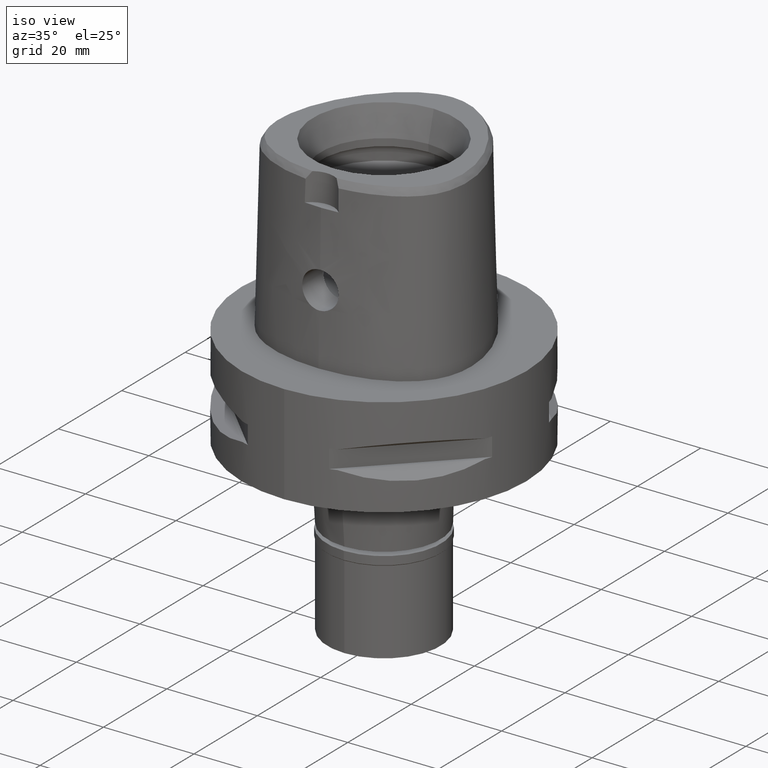
[diagram: clean part render]
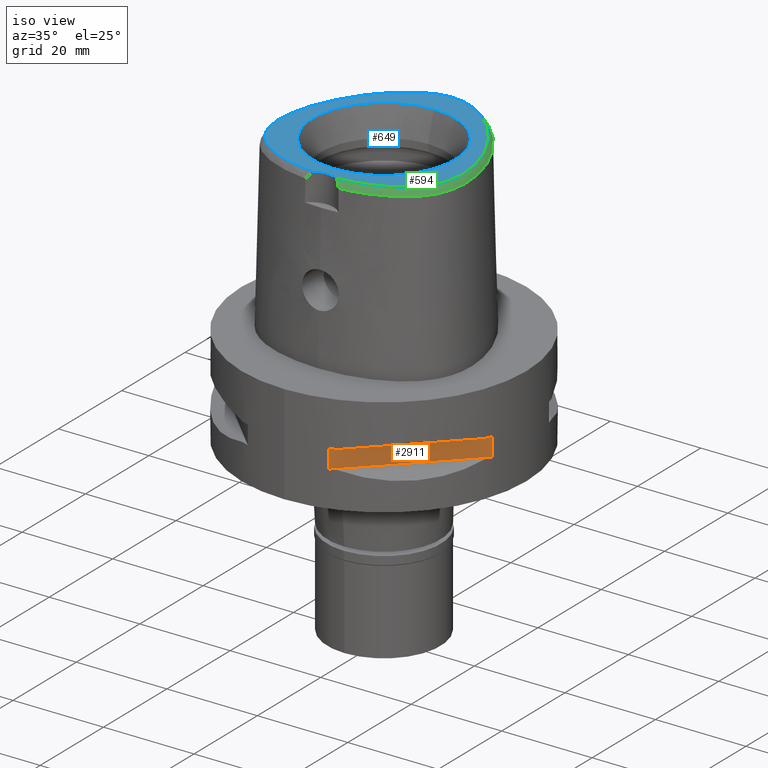
[diagram: same view with three faces highlighted in distinct colors, each labeled with its STEP entity id]
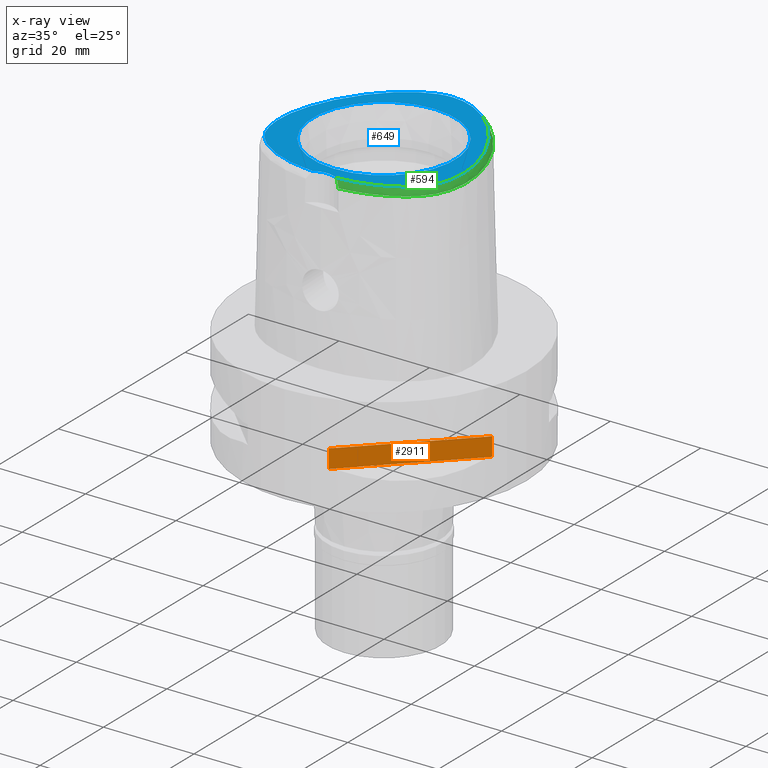
[diagram: x-ray of the same camera — body ghosted, the three highlighted faces saturated]
A machine part, iso view with three faces highlighted in distinct colors.
The next image is the same camera in x-ray (body ghosted, the three faces saturated) — at least one of them is partly hidden behind the body in this view.
Their STEP definitions:

[orange] entity #2911 — the highlighted planar face has unit normal (-0.7071, 0.7071, 0).
#5 = DIRECTION ( 'NONE',  ( -0.7071067811865475727, 0.7071067811865475727, 0.0000000000000000000 ) ) ;
#161 = FACE_OUTER_BOUND ( 'NONE', #3799, .T. ) ;
#304 = DIRECTION ( 'NONE',  ( 0.0000000000000000000, 0.0000000000000000000, 1.000000000000000000 ) ) ;
#465 = VERTEX_POINT ( 'NONE', #809 ) ;
#502 = EDGE_CURVE ( 'NONE', #704, #465, #1644, .T. ) ;
#704 = VERTEX_POINT ( 'NONE', #1951 ) ;
#794 = EDGE_CURVE ( 'NONE', #3995, #1065, #3544, .T. ) ;
#809 = CARTESIAN_POINT ( 'NONE',  ( 8.981198972017999438, -30.19251670572000279, -14.05000000000000071 ) ) ;
#1036 = ORIENTED_EDGE ( 'NONE', *, *, #3786, .F. ) ;
#1065 = VERTEX_POINT ( 'NONE', #4331 ) ;
#1235 = LINE ( 'NONE', #1924, #3603 ) ;
#1280 = CARTESIAN_POINT ( 'NONE',  ( 30.19251670572000279, -8.981198972019999616, -14.05000000000000071 ) ) ;
#1398 = LINE ( 'NONE', #4745, #4319 ) ;
#1459 = DIRECTION ( 'NONE',  ( 0.0000000000000000000, 0.0000000000000000000, 1.000000000000000000 ) ) ;
#1644 = LINE ( 'NONE', #4573, #4558 ) ;
#1924 = CARTESIAN_POINT ( 'NONE',  ( 8.981198972017999438, -30.19251670572000279, -9.950000000000001066 ) ) ;
#1951 = CARTESIAN_POINT ( 'NONE',  ( 8.981198972019999616, -30.19251670572000279, -9.950000000000001066 ) ) ;
#2180 = CARTESIAN_POINT ( 'NONE',  ( 33.72899346260000186, -5.444722215136000187, -9.950000000000001066 ) ) ;
#2659 = ORIENTED_EDGE ( 'NONE', *, *, #3566, .T. ) ;
#2911 = ADVANCED_FACE ( 'NONE', ( #161 ), #3280, .F. ) ;
#3116 = DIRECTION ( 'NONE',  ( 0.0000000000000000000, 0.0000000000000000000, -1.000000000000000000 ) ) ;
#3280 = PLANE ( 'NONE',  #3680 ) ;
#3308 = ORIENTED_EDGE ( 'NONE', *, *, #794, .T. ) ;
#3544 = LINE ( 'NONE', #4304, #3779 ) ;
#3566 = EDGE_CURVE ( 'NONE', #465, #3995, #1398, .T. ) ;
#3603 = VECTOR ( 'NONE', #4598, 1000.000000000000114 ) ;
#3651 = ORIENTED_EDGE ( 'NONE', *, *, #502, .T. ) ;
#3680 = AXIS2_PLACEMENT_3D ( 'NONE', #2180, #5, #1459 ) ;
#3779 = VECTOR ( 'NONE', #304, 1000.000000000000000 ) ;
#3786 = EDGE_CURVE ( 'NONE', #704, #1065, #1235, .T. ) ;
#3799 = EDGE_LOOP ( 'NONE', ( #1036, #3651, #2659, #3308 ) ) ;
#3995 = VERTEX_POINT ( 'NONE', #1280 ) ;
#4304 = CARTESIAN_POINT ( 'NONE',  ( 30.19251670572000279, -8.981198972017999438, -14.05000000000000071 ) ) ;
#4319 = VECTOR ( 'NONE', #4375, 1000.000000000000114 ) ;
#4331 = CARTESIAN_POINT ( 'NONE',  ( 30.19251670572000279, -8.981198972017999438, -9.950000000000001066 ) ) ;
#4375 = DIRECTION ( 'NONE',  ( 0.7071067811865474617, 0.7071067811865474617, 0.0000000000000000000 ) ) ;
#4558 = VECTOR ( 'NONE', #3116, 1000.000000000000000 ) ;
#4573 = CARTESIAN_POINT ( 'NONE',  ( 8.981198972017999438, -30.19251670572000279, -9.950000000000001066 ) ) ;
#4598 = DIRECTION ( 'NONE',  ( 0.7071067811865474617, 0.7071067811865474617, 0.0000000000000000000 ) ) ;
#4745 = CARTESIAN_POINT ( 'NONE',  ( 8.981198972017999438, -30.19251670572000279, -14.05000000000000071 ) ) ;

[blue] entity #649 — the highlighted planar face has unit normal (0, 0, 1).
#36 = CARTESIAN_POINT ( 'NONE',  ( -12.37132652997521909, -16.34104299087683643, 37.99999999999445777 ) ) ;
#69 = CARTESIAN_POINT ( 'NONE',  ( 6.196495988003891675, -18.31673538865191730, 38.00000000000313349 ) ) ;
#90 = CARTESIAN_POINT ( 'NONE',  ( 20.15982952132551276, -1.007721426051352731, 38.00000000000179767 ) ) ;
#114 = CARTESIAN_POINT ( 'NONE',  ( 8.936919536467154757, -17.64796721714841610, 37.99999999999366906 ) ) ;
#135 = CARTESIAN_POINT ( 'NONE',  ( -4.254559144978042440, 20.86660163696904746, 37.99999999999337064 ) ) ;
#182 = CARTESIAN_POINT ( 'NONE',  ( -20.30498420086371425, -2.177378896258032714, 37.99999999999987210 ) ) ;
#268 = CARTESIAN_POINT ( 'NONE',  ( -5.058220461389743683, 20.53445508814910880, 37.99999999999875655 ) ) ;
#295 = CARTESIAN_POINT ( 'NONE',  ( -5.893543501601197221, 20.13235399351722776, 38.00000000000076739 ) ) ;
#311 = CARTESIAN_POINT ( 'NONE',  ( 8.578848111816013144, 18.44609846599285063, 37.99999999999612044 ) ) ;
#319 = EDGE_LOOP ( 'NONE', ( #4238, #1318, #2052 ) ) ;
#388 = CARTESIAN_POINT ( 'NONE',  ( -3.470663397160999593E-11, 21.68728795390000030, 38.00000000000000000 ) ) ;
#406 = CARTESIAN_POINT ( 'NONE',  ( 20.27923816685492397, -6.179850483268410244, 38.00000000000240874 ) ) ;
#424 = CARTESIAN_POINT ( 'NONE',  ( -15.71788912669632587, -14.29843101566062025, 37.99999999999926104 ) ) ;
#429 = CARTESIAN_POINT ( 'NONE',  ( 19.26272899268408167, 2.870227893749381476, 37.99999999999688782 ) ) ;
#458 = CARTESIAN_POINT ( 'NONE',  ( 12.37622418509792510, -16.33871033285605989, 37.99999999999761258 ) ) ;
#506 = CARTESIAN_POINT ( 'NONE',  ( 20.38292172607700437, -3.276278498261381511, 37.99999999999292299 ) ) ;
#529 = CARTESIAN_POINT ( 'NONE',  ( 0.0000000000000000000, -23.00000000000000000, 38.00000000000000000 ) ) ;
#551 = CARTESIAN_POINT ( 'NONE',  ( -18.79649882724501708, 4.256255933891700316, 37.99999999999526068 ) ) ;
#631 = CARTESIAN_POINT ( 'NONE',  ( -19.28591707036573411, -9.869682450886463343, 38.00000000000031264 ) ) ;
#649 = ADVANCED_FACE ( 'NONE', ( #1238, #2727 ), #2365, .T. ) ;
#682 = CARTESIAN_POINT ( 'NONE',  ( -18.24302769442545724, 5.671232572958566642, 37.99999999999709388 ) ) ;
#718 = EDGE_CURVE ( 'NONE', #2443, #3649, #4565, .T. ) ;
#731 = VERTEX_POINT ( 'NONE', #1720 ) ;
#766 = CARTESIAN_POINT ( 'NONE',  ( -7.599370508970574534, -18.01010694911788690, 38.00000000000628830 ) ) ;
#773 = CARTESIAN_POINT ( 'NONE',  ( 10.17751632998411360, -17.24426134458614612, 38.00000000000031974 ) ) ;
#795 = CARTESIAN_POINT ( 'NONE',  ( 18.79595068776072253, 4.257753965101223947, 38.00000000000219558 ) ) ;
#817 = CARTESIAN_POINT ( 'NONE',  ( 3.529311563348378478, -18.70747079909597588, 37.99999999999985789 ) ) ;
#885 = CARTESIAN_POINT ( 'NONE',  ( -20.36398648679804069, -5.278470727085489145, 38.00000000000083844 ) ) ;
#888 = CARTESIAN_POINT ( 'NONE',  ( 2.682287482605000051, -18.78036330228999873, 38.00000000000000000 ) ) ;
#1016 = B_SPLINE_CURVE_WITH_KNOTS ( 'NONE', 3,
 ( #3436, #2951, #4450, #1119, #2598, #766, #3713, #1871, #3340, #36, #2974, #4478, #1144, #424, #1894, #3362, #1763, #3490, #1366, #2108, #1037, #631, #3236, #3601, #1627, #4709, #1734, #885, #2490, #3971, #182, #3579, #2510, #3099, #1647, #551, #682, #2023, #1389, #2771, #3950, #3997, #4599, #2470, #3119, #1258, #2159, #2745, #4624, #1281, #295, #268, #135, #2850, #2725, #4227, #4206, #3206, #4345, #4576 ),
 .UNSPECIFIED., .F., .F.,
 ( 4, 1, 1, 1, 1, 1, 1, 1, 1, 1, 1, 1, 1, 1, 1, 1, 1, 1, 1, 1, 1, 1, 1, 1, 1, 1, 1, 1, 1, 1, 1, 1, 1, 1, 1, 1, 1, 1, 1, 1, 1, 1, 1, 1, 1, 1, 1, 1, 1, 1, 1, 1, 1, 1, 1, 1, 1, 4 ),
 ( 0.0000000000000000000, 0.005420919554200098744, 0.02318126027639999531, 0.04094160099879995407, 0.05870194172099996166, 0.07646228244330000035, 0.09422262316550000794, 0.1119829638877999356, 0.1297433046099999432, 0.1475036453321999508, 0.1652639860544999895, 0.1830243267768000281, 0.2007846674991000668, 0.2185450082212999634, 0.2363053489436000021, 0.2540656896658000097, 0.2718260303881000484, 0.2895863711103000560, 0.3073467118325999836, 0.3251070525547999912, 0.3428673932771000299, 0.3606277339994000686, 0.3783880747216000762, 0.3961484154438998928, 0.4139087561661000114, 0.4316690968884000501, 0.4494294376106000577, 0.4671897783328999854, 0.4849501190552000240, 0.5027104597774000316, 0.5204708004996999593, 0.5382311412219000779, 0.5559914819442000056, 0.5737518226664000132, 0.5915121633886999408, 0.6092725041108999484, 0.6270328448331999871, 0.6447931855555000258, 0.6625535262777000334, 0.6803138669999999610, 0.6980742077221999686, 0.7158345484445000073, 0.7335948891667000149, 0.7513552298890000536, 0.7691155706112000612, 0.7868759113336000199, 0.8046362520558000275, 0.8223965927780999552, 0.8401569335002999628, 0.8579172742224999704, 0.8756776149448000091, 0.8934379556670000166, 0.9111982963893099363, 0.9289586371115700070, 0.9467189778338299666, 0.9644793185560800453, 0.9822396592783400049, 1.000000000000000000 ),
 .UNSPECIFIED. ) ;
#1037 = CARTESIAN_POINT ( 'NONE',  ( -18.99520880204356033, -10.46968343926559974, 38.00000000000319744 ) ) ;
#1119 = CARTESIAN_POINT ( 'NONE',  ( -4.706994425064668697, -18.56721852572514564, 38.00000000000364508 ) ) ;
#1144 = CARTESIAN_POINT ( 'NONE',  ( -15.00295592774225462, -14.82617991125628087, 37.99999999999894129 ) ) ;
#1151 = CARTESIAN_POINT ( 'NONE',  ( 18.24247239569152512, 5.672548708071921908, 37.99999999999578648 ) ) ;
#1170 = CARTESIAN_POINT ( 'NONE',  ( 19.94150023628169066, 0.2261566111943370538, 38.00000000000355982 ) ) ;
#1238 = FACE_OUTER_BOUND ( 'NONE', #319, .T. ) ;
#1241 = CARTESIAN_POINT ( 'NONE',  ( 15.72078707640547535, -14.29615620308939938, 38.00000000000181188 ) ) ;
#1258 = CARTESIAN_POINT ( 'NONE',  ( -10.48962422759199598, 16.86631853279267546, 38.00000000000657963 ) ) ;
#1277 = CIRCLE ( 'NONE', #1906, 15.71487483155999776 ) ;
#1281 = CARTESIAN_POINT ( 'NONE',  ( -6.759433772717041933, 19.65454812513179661, 37.99999999999202061 ) ) ;
#1318 = ORIENTED_EDGE ( 'NONE', *, *, #2720, .F. ) ;
#1366 = CARTESIAN_POINT ( 'NONE',  ( -18.31748213707525963, -11.58791794387436269, 37.99999999999728573 ) ) ;
#1389 = CARTESIAN_POINT ( 'NONE',  ( -16.88647904405276279, 8.517821442303095125, 38.00000000000161293 ) ) ;
#1404 = CARTESIAN_POINT ( 'NONE',  ( 11.46587147800180162, 15.92717600803030642, 37.99999999999769784 ) ) ;
#1474 = CARTESIAN_POINT ( 'NONE',  ( 6.760281394350546869, 19.65404668909186725, 37.99999999999746336 ) ) ;
#1555 = CARTESIAN_POINT ( 'NONE',  ( 20.40062138794634095, -4.309334958867279575, 38.00000000000047606 ) ) ;
#1578 = CARTESIAN_POINT ( 'NONE',  ( 2.845098933833339672, -18.76733062685845610, 37.99999999999811706 ) ) ;
#1627 = CARTESIAN_POINT ( 'NONE',  ( -19.98419490691922817, -7.809898894996026186, 38.00000000000350298 ) ) ;
#1647 = CARTESIAN_POINT ( 'NONE',  ( -19.26324493738699317, 2.868570891456522443, 38.00000000000267875 ) ) ;
#1672 = DIRECTION ( 'NONE',  ( 0.0000000000000000000, 0.0000000000000000000, 1.000000000000000000 ) ) ;
#1720 = CARTESIAN_POINT ( 'NONE',  ( -3.470663397160999593E-11, 21.68728795390000030, 38.00000000000000000 ) ) ;
#1734 = CARTESIAN_POINT ( 'NONE',  ( -20.27898581532047473, -6.181921586190538775, 37.99999999999525357 ) ) ;
#1746 = CARTESIAN_POINT ( 'NONE',  ( 0.0000000000000000000, -15.71487483155999776, 38.00000000000000000 ) ) ;
#1763 = CARTESIAN_POINT ( 'NONE',  ( -17.45119705493698703, -12.68365517585271895, 37.99999999999776890 ) ) ;
#1779 = CARTESIAN_POINT ( 'NONE',  ( 9.524842839487369872, 17.70516372194522603, 38.00000000000203215 ) ) ;
#1829 = CARTESIAN_POINT ( 'NONE',  ( 3.482188079160250638, 21.13472718027093933, 38.00000000000076739 ) ) ;
#1852 = ORIENTED_EDGE ( 'NONE', *, *, #3887, .F. ) ;
#1871 = CARTESIAN_POINT ( 'NONE',  ( -10.17136073855303557, -17.24644253470348332, 37.99999999999890576 ) ) ;
#1876 = CARTESIAN_POINT ( 'NONE',  ( 16.36283630828187441, -13.76236604535227670, 37.99999999999980105 ) ) ;
#1894 = CARTESIAN_POINT ( 'NONE',  ( -16.36032397153825002, -13.76458520345415160, 38.00000000000483880 ) ) ;
#1902 = CARTESIAN_POINT ( 'NONE',  ( 13.33890749495237316, -15.84912955619417829, 37.99999999999266009 ) ) ;
#1906 = AXIS2_PLACEMENT_3D ( 'NONE', #4282, #1672, #3584 ) ;
#1953 = CARTESIAN_POINT ( 'NONE',  ( 19.98468477322604997, -7.807876343103005823, 38.00000000000075318 ) ) ;
#1974 = CARTESIAN_POINT ( 'NONE',  ( 18.31883910942869065, -11.58595831188009839, 38.00000000000036238 ) ) ;
#2002 = DIRECTION ( 'NONE',  ( 0.0000000000000000000, 0.0000000000000000000, 1.000000000000000000 ) ) ;
#2023 = CARTESIAN_POINT ( 'NONE',  ( -17.60426951086718717, 7.098774535281367370, 37.99999999999846523 ) ) ;
#2052 = ORIENTED_EDGE ( 'NONE', *, *, #718, .F. ) ;
#2073 = DIRECTION ( 'NONE',  ( 0.0000000000000000000, 0.0000000000000000000, 1.000000000000000000 ) ) ;
#2103 = ORIENTED_EDGE ( 'NONE', *, *, #3554, .F. ) ;
#2108 = CARTESIAN_POINT ( 'NONE',  ( -18.67608643721840167, -11.03561202290779164, 38.00000000000071765 ) ) ;
#2159 = CARTESIAN_POINT ( 'NONE',  ( -9.524337278002157348, 17.70558492631315417, 38.00000000000049027 ) ) ;
#2270 = CARTESIAN_POINT ( 'NONE',  ( 17.60373714028487768, 7.099883643192471894, 38.00000000000125766 ) ) ;
#2343 = CARTESIAN_POINT ( 'NONE',  ( 4.715576077242096709, -18.56597918134990621, 37.99999999999607070 ) ) ;
#2363 = EDGE_CURVE ( 'NONE', #731, #2443, #3316, .T. ) ;
#2365 = PLANE ( 'NONE',  #3855 ) ;
#2432 = DIRECTION ( 'NONE',  ( 0.0000000000000000000, 1.000000000000000000, 0.0000000000000000000 ) ) ;
#2443 = VERTEX_POINT ( 'NONE', #888 ) ;
#2470 = CARTESIAN_POINT ( 'NONE',  ( -12.44116897271361921, 14.89128547409480596, 37.99999999999800337 ) ) ;
#2477 = CARTESIAN_POINT ( 'NONE',  ( 0.0000000000000000000, 15.71487483155999776, 38.00000000000000000 ) ) ;
#2490 = CARTESIAN_POINT ( 'NONE',  ( -20.40060226222599127, -4.311417605381193674, 38.00000000000476774 ) ) ;
#2510 = CARTESIAN_POINT ( 'NONE',  ( -19.94188961899365964, 0.2242544969876774930, 38.00000000000369482 ) ) ;
#2531 = CARTESIAN_POINT ( 'NONE',  ( 14.34383722811259609, 12.54786717290273934, 37.99999999999905498 ) ) ;
#2581 = CARTESIAN_POINT ( 'NONE',  ( 5.059249257020334234, 20.53399274679087938, 37.99999999999902656 ) ) ;
#2598 = CARTESIAN_POINT ( 'NONE',  ( -6.188376196366385251, -18.31830638231354058, 37.99999999999941025 ) ) ;
#2632 = CARTESIAN_POINT ( 'NONE',  ( 20.30478359881542971, -2.175347700950354124, 37.99999999999981526 ) ) ;
#2677 = CARTESIAN_POINT ( 'NONE',  ( 11.32341394162987847, -16.80569392800095940, 37.99999999999593570 ) ) ;
#2706 = CARTESIAN_POINT ( 'NONE',  ( 18.99619228226442047, -10.46780014453517538, 37.99999999999898392 ) ) ;
#2720 = EDGE_CURVE ( 'NONE', #3649, #731, #1016, .T. ) ;
#2725 = CARTESIAN_POINT ( 'NONE',  ( -2.735698246183580373, 21.34559102902349537, 38.00000000000349587 ) ) ;
#2727 = FACE_BOUND ( 'NONE', #3423, .T. ) ;
#2729 = CARTESIAN_POINT ( 'NONE',  ( 15.00628712263478270, -14.82385870794322180, 37.99999999999566569 ) ) ;
#2745 = CARTESIAN_POINT ( 'NONE',  ( -8.578220530113664921, 18.44656747109453576, 37.99999999999812417 ) ) ;
#2747 = DIRECTION ( 'NONE',  ( 0.0000000000000000000, 0.0000000000000000000, 1.000000000000000000 ) ) ;
#2771 = CARTESIAN_POINT ( 'NONE',  ( -16.09805956313334718, 9.908742513517049488, 38.00000000000217426 ) ) ;
#2850 = CARTESIAN_POINT ( 'NONE',  ( -3.481017203588670395, 21.13509756881378365, 38.00000000000080291 ) ) ;
#2861 = CARTESIAN_POINT ( 'NONE',  ( 0.2185816947241053798, 21.68728795389860764, 38.00000000000059686 ) ) ;
#2885 = CARTESIAN_POINT ( 'NONE',  ( 12.44125753246447275, 14.89118158853097107, 37.99999999999651124 ) ) ;
#2951 = CARTESIAN_POINT ( 'NONE',  ( -2.841965291530372362, -18.76757795571552734, 37.99999999999764810 ) ) ;
#2974 = CARTESIAN_POINT ( 'NONE',  ( -13.33457781969969780, -15.85148397417436605, 37.99999999999943867 ) ) ;
#3004 = CARTESIAN_POINT ( 'NONE',  ( 19.28677546796755848, -9.867757137505572373, 37.99999999999638334 ) ) ;
#3099 = CARTESIAN_POINT ( 'NONE',  ( -19.64434054693128573, 1.520253387635817521, 37.99999999999850786 ) ) ;
#3119 = CARTESIAN_POINT ( 'NONE',  ( -11.46564124494827297, 15.92741340513565973, 37.99999999999770495 ) ) ;
#3206 = CARTESIAN_POINT ( 'NONE',  ( -0.6498990081534928853, 21.67378274708418928, 37.99999999999803180 ) ) ;
#3207 = CIRCLE ( 'NONE', #4394, 15.71487483155999776 ) ;
#3236 = CARTESIAN_POINT ( 'NONE',  ( -19.54919922641897756, -9.228169790568419018, 38.00000000000602540 ) ) ;
#3316 = B_SPLINE_CURVE_WITH_KNOTS ( 'NONE', 3,
 ( #388, #2861, #4359, #3669, #3325, #3592, #1829, #4434, #2581, #4067, #1474, #3621, #311, #1779, #4750, #1404, #2885, #4381, #2531, #4020, #4136, #3396, #2270, #1151, #795, #429, #3817, #1170, #90, #2632, #506, #1555, #4115, #406, #3794, #1953, #4581, #4189, #3004, #2706, #4508, #1974, #3718, #3742, #3442, #1876, #1241, #2729, #3417, #1902, #458, #2677, #773, #114, #3370, #69, #2343, #817, #1578, #4164 ),
 .UNSPECIFIED., .F., .F.,
 ( 4, 1, 1, 1, 1, 1, 1, 1, 1, 1, 1, 1, 1, 1, 1, 1, 1, 1, 1, 1, 1, 1, 1, 1, 1, 1, 1, 1, 1, 1, 1, 1, 1, 1, 1, 1, 1, 1, 1, 1, 1, 1, 1, 1, 1, 1, 1, 1, 1, 1, 1, 1, 1, 1, 1, 1, 1, 4 ),
 ( 0.0000000000000000000, 0.01775854187129999318, 0.03551708374169992855, 0.05327562561200005486, 0.07103416748239999023, 0.08879270935270000553, 0.1065512512231000519, 0.1243097930933999562, 0.1420683349638000026, 0.1598268768341000179, 0.1775854187044000332, 0.1953439605747999686, 0.2131025024450999839, 0.2308610443155000302, 0.2486195861857999345, 0.2663781280563000120, 0.2841366699266000273, 0.3018952117970000737, 0.3196537536672999780, 0.3374122955377000244, 0.3551708374080000397, 0.3729293792782999439, 0.3906879211486999903, 0.4084464630190000056, 0.4262050048894000520, 0.4439635467596999563, 0.4617220886301000027, 0.4794806305004000180, 0.4972391723707999533, 0.5149977142410999686, 0.5327562561113999839, 0.5505147979818000303, 0.5682733398521000456, 0.5860318817224999810, 0.6037904235927999963, 0.6215489654632000427, 0.6393075073334999470, 0.6570660492038999934, 0.6748245910742000087, 0.6925831329445000240, 0.7103416748149000703, 0.7281002166851999746, 0.7458587585556000210, 0.7636173004259000363, 0.7813758422962999717, 0.7991343841665999870, 0.8168929260370000334, 0.8346514679073000487, 0.8524100097776999840, 0.8701685516479999993, 0.8879270935183000146, 0.9056856353886799660, 0.9234441772589799813, 0.9412027191293600437, 0.9589612609997000270, 0.9767198028700500023, 0.9944783447403919840, 1.000000000000000000 ),
 .UNSPECIFIED. ) ;
#3325 = CARTESIAN_POINT ( 'NONE',  ( 2.018320379028527789, 21.50256508436672931, 37.99999999999606359 ) ) ;
#3340 = CARTESIAN_POINT ( 'NONE',  ( -11.31790883121545299, -16.80796958613305847, 37.99999999999874234 ) ) ;
#3362 = CARTESIAN_POINT ( 'NONE',  ( -16.93638123745522961, -13.22593246128374744, 37.99999999999199929 ) ) ;
#3370 = CARTESIAN_POINT ( 'NONE',  ( 7.606839420237388794, -18.00827588386221123, 38.00000000000269296 ) ) ;
#3396 = CARTESIAN_POINT ( 'NONE',  ( 16.88599964843255918, 8.518708218769928564, 37.99999999999912603 ) ) ;
#3417 = CARTESIAN_POINT ( 'NONE',  ( 14.21382211799195616, -15.34284287399880853, 37.99999999999766942 ) ) ;
#3423 = EDGE_LOOP ( 'NONE', ( #1852, #2103 ) ) ;
#3436 = CARTESIAN_POINT ( 'NONE',  ( -2.682279906006999948, -18.78035848609999903, 38.00000000000000000 ) ) ;
#3442 = CARTESIAN_POINT ( 'NONE',  ( 16.93855157777392151, -13.22377441789260644, 37.99999999999843681 ) ) ;
#3490 = CARTESIAN_POINT ( 'NONE',  ( -17.91005512243344100, -12.13778127739968049, 38.00000000000122924 ) ) ;
#3515 = CARTESIAN_POINT ( 'NONE',  ( 0.0000000000000000000, 0.0000000000000000000, 38.00000000000000000 ) ) ;
#3527 = VERTEX_POINT ( 'NONE', #2477 ) ;
#3553 = VERTEX_POINT ( 'NONE', #1746 ) ;
#3554 = EDGE_CURVE ( 'NONE', #3527, #3553, #3207, .T. ) ;
#3579 = CARTESIAN_POINT ( 'NONE',  ( -20.16012968311919806, -1.009698174524695125, 38.00000000000442668 ) ) ;
#3584 = DIRECTION ( 'NONE',  ( 0.0000000000000000000, -1.000000000000000000, 0.0000000000000000000 ) ) ;
#3592 = CARTESIAN_POINT ( 'NONE',  ( 2.736932690726517681, 21.34527940056705830, 38.00000000000343903 ) ) ;
#3601 = CARTESIAN_POINT ( 'NONE',  ( -19.78262210840269120, -8.543146992552829389, 38.00000000000322586 ) ) ;
#3621 = CARTESIAN_POINT ( 'NONE',  ( 7.655962789342683372, 19.09402979099870379, 38.00000000000011369 ) ) ;
#3649 = VERTEX_POINT ( 'NONE', #4406 ) ;
#3669 = CARTESIAN_POINT ( 'NONE',  ( 1.325020189552781114, 21.61081414408645429, 37.99999999999970868 ) ) ;
#3713 = CARTESIAN_POINT ( 'NONE',  ( -8.930096025510913194, -17.65000298921485467, 38.00000000000223110 ) ) ;
#3718 = CARTESIAN_POINT ( 'NONE',  ( 17.91165267839015129, -12.13575389397930948, 38.00000000000635936 ) ) ;
#3735 = DIRECTION ( 'NONE',  ( 0.0000000000000000000, 1.000000000000000000, 0.0000000000000000000 ) ) ;
#3742 = CARTESIAN_POINT ( 'NONE',  ( 17.45306278053166338, -12.68156296993766396, 38.00000000000351719 ) ) ;
#3792 = DIRECTION ( 'NONE',  ( 1.000000000000000000, 0.0000000000000000000, 0.0000000000000000000 ) ) ;
#3794 = CARTESIAN_POINT ( 'NONE',  ( 20.15127154947391830, -7.022178451341338778, 37.99999999999756994 ) ) ;
#3817 = CARTESIAN_POINT ( 'NONE',  ( 19.64387775268384928, 1.522048414457877641, 37.99999999999514699 ) ) ;
#3855 = AXIS2_PLACEMENT_3D ( 'NONE', #3888, #2747, #3792 ) ;
#3887 = EDGE_CURVE ( 'NONE', #3553, #3527, #1277, .T. ) ;
#3888 = CARTESIAN_POINT ( 'NONE',  ( 0.0000000000000000000, 0.0000000000000000000, 38.00000000000000000 ) ) ;
#3950 = CARTESIAN_POINT ( 'NONE',  ( -15.24692477331998397, 11.25717358966187476, 38.00000000000596145 ) ) ;
#3971 = CARTESIAN_POINT ( 'NONE',  ( -20.38301517462473456, -3.278344853328087893, 38.00000000000444800 ) ) ;
#3997 = CARTESIAN_POINT ( 'NONE',  ( -14.34402387966267334, 12.54761970512591596, 38.00000000000272138 ) ) ;
#4020 = CARTESIAN_POINT ( 'NONE',  ( 15.24661770199641175, 11.25762885478045128, 37.99999999999773337 ) ) ;
#4067 = CARTESIAN_POINT ( 'NONE',  ( 5.894487344449834687, 20.13186406532368977, 37.99999999999293010 ) ) ;
#4115 = CARTESIAN_POINT ( 'NONE',  ( 20.36412151361080092, -5.276385427453464949, 38.00000000000208900 ) ) ;
#4136 = CARTESIAN_POINT ( 'NONE',  ( 16.09765529146614682, 9.909410920133183254, 37.99999999999830891 ) ) ;
#4164 = CARTESIAN_POINT ( 'NONE',  ( 2.682287482605000051, -18.78036330228999873, 38.00000000000000000 ) ) ;
#4189 = CARTESIAN_POINT ( 'NONE',  ( 19.54993126781652535, -9.226212439885420835, 38.00000000000284217 ) ) ;
#4206 = CARTESIAN_POINT ( 'NONE',  ( -1.323674540693856372, 21.61098849315872172, 38.00000000000257216 ) ) ;
#4227 = CARTESIAN_POINT ( 'NONE',  ( -2.017025177696713634, 21.50280829368305646, 37.99999999999857181 ) ) ;
#4238 = ORIENTED_EDGE ( 'NONE', *, *, #2363, .F. ) ;
#4282 = CARTESIAN_POINT ( 'NONE',  ( 0.0000000000000000000, 0.0000000000000000000, 38.00000000000000000 ) ) ;
#4345 = CARTESIAN_POINT ( 'NONE',  ( -0.2181979014508824977, 21.68728795389161590, 37.99999999999570832 ) ) ;
#4359 = CARTESIAN_POINT ( 'NONE',  ( 0.6513209347955373207, 21.67370899611687918, 38.00000000000355271 ) ) ;
#4381 = CARTESIAN_POINT ( 'NONE',  ( 13.40430406168443511, 13.76274261012761535, 38.00000000000562750 ) ) ;
#4394 = AXIS2_PLACEMENT_3D ( 'NONE', #3515, #2073, #3735 ) ;
#4406 = CARTESIAN_POINT ( 'NONE',  ( -2.682279906006999948, -18.78035848609999903, 38.00000000000000000 ) ) ;
#4434 = CARTESIAN_POINT ( 'NONE',  ( 4.255661039972316928, 20.86618068830017947, 37.99999999999440092 ) ) ;
#4450 = CARTESIAN_POINT ( 'NONE',  ( -3.522896839653752998, -18.70811514173156809, 37.99999999999747757 ) ) ;
#4478 = CARTESIAN_POINT ( 'NONE',  ( -14.21001600787207764, -15.34519100086168564, 37.99999999999732125 ) ) ;
#4508 = CARTESIAN_POINT ( 'NONE',  ( 18.67722910598179809, -11.03372143227912083, 38.00000000000360245 ) ) ;
#4565 = CIRCLE ( 'NONE', #4647, 5.000000000000000888 ) ;
#4576 = CARTESIAN_POINT ( 'NONE',  ( -3.470663397160999593E-11, 21.68728795390000030, 38.00000000000000000 ) ) ;
#4581 = CARTESIAN_POINT ( 'NONE',  ( 19.78323211893068390, -8.541156231035408553, 37.99999999999594280 ) ) ;
#4599 = CARTESIAN_POINT ( 'NONE',  ( -13.40435640711384835, 13.76268382997505846, 38.00000000000202505 ) ) ;
#4624 = CARTESIAN_POINT ( 'NONE',  ( -7.655222869372232175, 19.09452359226018459, 37.99999999999626255 ) ) ;
#4647 = AXIS2_PLACEMENT_3D ( 'NONE', #529, #2002, #2432 ) ;
#4709 = CARTESIAN_POINT ( 'NONE',  ( -20.15090095364979916, -7.024227649787584404, 38.00000000000083134 ) ) ;
#4750 = CARTESIAN_POINT ( 'NONE',  ( 10.48999540691250765, 16.86597469870131150, 37.99999999999969447 ) ) ;

[green] entity #594 — the highlighted face is a freeform B-spline surface patch.
#19 = CARTESIAN_POINT ( 'NONE',  ( 5.308681364422000115, 21.09038558219000237, 36.97019102395999823 ) ) ;
#30 = CARTESIAN_POINT ( 'NONE',  ( 2.718046802608999446, -19.73559769811999942, 36.38875299522999995 ) ) ;
#39 = CARTESIAN_POINT ( 'NONE',  ( 5.449512761073999734, 21.40452950259999909, 36.38875249990000071 ) ) ;
#51 = CARTESIAN_POINT ( 'NONE',  ( 14.53310188224999955, -15.86229356243000055, 36.97019102363000087 ) ) ;
#67 = CARTESIAN_POINT ( 'NONE',  ( 12.89544665931999923, 15.29787140029999826, 36.97019126019999646 ) ) ;
#69 = CARTESIAN_POINT ( 'NONE',  ( 6.196495988003891675, -18.31673538865191730, 38.00000000000313349 ) ) ;
#78 = CARTESIAN_POINT ( 'NONE',  ( 18.60983917105000174, -10.99288182345999942, 38.13306809632999972 ) ) ;
#88 = CARTESIAN_POINT ( 'NONE',  ( 15.11229775574000023, 13.11295056149000082, 36.38875271845000015 ) ) ;
#90 = CARTESIAN_POINT ( 'NONE',  ( 20.15982952132551276, -1.007721426051352731, 38.00000000000179767 ) ) ;
#92 = EDGE_CURVE ( 'NONE', #3777, #2443, #2901, .T. ) ;
#100 = CARTESIAN_POINT ( 'NONE',  ( 19.47612980932999704, -9.198605774530999923, 38.13306807539999710 ) ) ;
#114 = CARTESIAN_POINT ( 'NONE',  ( 8.936919536467154757, -17.64796721714841610, 37.99999999999366906 ) ) ;
#163 = CARTESIAN_POINT ( 'NONE',  ( 2.067421654448999835, 21.76348474602999872, 37.55162940759999657 ) ) ;
#184 = CARTESIAN_POINT ( 'NONE',  ( 0.02436150541513000187, 22.64751139195999841, 36.38875233207999571 ) ) ;
#189 = CARTESIAN_POINT ( 'NONE',  ( 11.29342512308000046, -16.73284272958999708, 38.13306813402000017 ) ) ;
#214 = CARTESIAN_POINT ( 'NONE',  ( 16.99322886830999835, -14.47847318820999973, 36.38875181882000476 ) ) ;
#236 = CARTESIAN_POINT ( 'NONE',  ( 18.48723950747999822, 5.775240790746000386, 37.55162950271999733 ) ) ;
#258 = CARTESIAN_POINT ( 'NONE',  ( 18.46478047805999978, 7.510308704084999398, 36.38875302592000338 ) ) ;
#281 = CARTESIAN_POINT ( 'NONE',  ( 20.44355220657000061, -9.560486243079999724, 36.38875245975000183 ) ) ;
#310 = CARTESIAN_POINT ( 'NONE',  ( 20.62904181174999607, -5.293526146025000045, 37.55162968442999727 ) ) ;
#311 = CARTESIAN_POINT ( 'NONE',  ( 8.578848111816013144, 18.44609846599285063, 37.99999999999612044 ) ) ;
#338 = CARTESIAN_POINT ( 'NONE',  ( 21.35456011536999910, -4.318129535481999959, 36.38875217260999761 ) ) ;
#356 = CARTESIAN_POINT ( 'NONE',  ( 10.91891095221293995, -18.03046396093321491, 36.52186680739941238 ) ) ;
#360 = CARTESIAN_POINT ( 'NONE',  ( 16.91609474190000029, 10.39930672276000045, 36.38875202780000251 ) ) ;
#374 = CARTESIAN_POINT ( 'NONE',  ( 2.130721313217999846, -19.77527687802000145, 36.38875289258999857 ) ) ;
#386 = CARTESIAN_POINT ( 'NONE',  ( 7.244701168877000441, 20.47587456817999652, 36.38875201312000485 ) ) ;
#388 = CARTESIAN_POINT ( 'NONE',  ( -3.470663397160999593E-11, 21.68728795390000030, 38.00000000000000000 ) ) ;
#396 = CARTESIAN_POINT ( 'NONE',  ( 4.753209729222000135, -18.82873514427999950, 37.55162941753999917 ) ) ;
#404 = CARTESIAN_POINT ( 'NONE',  ( 10.66932230817999994, 17.06168913680999921, 37.55163051119000528 ) ) ;
#406 = CARTESIAN_POINT ( 'NONE',  ( 20.27923816685492397, -6.179850483268410244, 38.00000000000240874 ) ) ;
#423 = CARTESIAN_POINT ( 'NONE',  ( 7.300578979384878764, -19.07170738131010168, 36.52186680739941238 ) ) ;
#427 = CARTESIAN_POINT ( 'NONE',  ( 3.665734722444999871, 21.71621763551000228, 36.97019099682000132 ) ) ;
#429 = CARTESIAN_POINT ( 'NONE',  ( 19.26272899268408167, 2.870227893749381476, 37.99999999999688782 ) ) ;
#439 = CARTESIAN_POINT ( 'NONE',  ( 18.81963744488999879, -11.93390534559999949, 36.97019052620999702 ) ) ;
#456 = CARTESIAN_POINT ( 'NONE',  ( 13.61039038074000018, 13.93003227594000037, 37.55162927101000037 ) ) ;
#458 = CARTESIAN_POINT ( 'NONE',  ( 12.37622418509792510, -16.33871033285605989, 37.99999999999761258 ) ) ;
#468 = CARTESIAN_POINT ( 'NONE',  ( 15.15769067600999875, -15.04192871263999898, 37.55162967644999839 ) ) ;
#504 = CARTESIAN_POINT ( 'NONE',  ( -0.6579105996649999843, 22.62272454289000123, 36.38875150671999847 ) ) ;
#506 = CARTESIAN_POINT ( 'NONE',  ( 20.38292172607700437, -3.276278498261381511, 37.99999999999292299 ) ) ;
#557 = CARTESIAN_POINT ( 'NONE',  ( 17.36778487505999991, -13.65689000885999960, 36.97019065325000042 ) ) ;
#579 = CARTESIAN_POINT ( 'NONE',  ( 17.90752557252999821, -13.08814389601000094, 36.97019074648000014 ) ) ;
#594 = ADVANCED_FACE ( 'NONE', ( #3706 ), #2481, .F. ) ;
#603 = CARTESIAN_POINT ( 'NONE',  ( 11.55549631903000041, -17.36948670612999734, 36.97019054458999676 ) ) ;
#623 = CARTESIAN_POINT ( 'NONE',  ( 17.11994149545999733, 8.644114608243999243, 37.55162951729000298 ) ) ;
#642 = CARTESIAN_POINT ( 'NONE',  ( 21.10299568213000043, -0.8648641302556000499, 36.38875251822000223 ) ) ;
#665 = CARTESIAN_POINT ( 'NONE',  ( 3.332512315109000145, -19.26456285543999769, 37.08808184400999863 ) ) ;
#670 = CARTESIAN_POINT ( 'NONE',  ( 19.86431138252000039, 0.2104018686390999870, 38.13306782679000406 ) ) ;
#696 = CARTESIAN_POINT ( 'NONE',  ( -1.408649407704000149E-11, 22.56201468012000078, 36.52186680743999858 ) ) ;
#700 = CARTESIAN_POINT ( 'NONE',  ( 21.31612931479000395, -5.337981680787000194, 36.38875299008999775 ) ) ;
#714 = CARTESIAN_POINT ( 'NONE',  ( 4.850814979370999147, -19.51020930744000026, 36.38875203103000189 ) ) ;
#720 = CARTESIAN_POINT ( 'NONE',  ( 18.90964962507614544, -12.28759713487693794, 36.52186680739941238 ) ) ;
#723 = CARTESIAN_POINT ( 'NONE',  ( 9.474632334672000056, 17.64445635639999921, 38.13306798769999517 ) ) ;
#731 = VERTEX_POINT ( 'NONE', #1720 ) ;
#739 = CARTESIAN_POINT ( 'NONE',  ( 20.09619608768658594, -10.23243839430358193, 36.52186680739941238 ) ) ;
#743 = CARTESIAN_POINT ( 'NONE',  ( 6.895083473633000004, 19.88274112466000076, 37.55162941256000408 ) ) ;
#771 = CARTESIAN_POINT ( 'NONE',  ( 13.87763931439999965, 14.14697042597000021, 36.97019038771999533 ) ) ;
#773 = CARTESIAN_POINT ( 'NONE',  ( 10.17751632998411360, -17.24426134458614612, 38.00000000000031974 ) ) ;
#788 = CARTESIAN_POINT ( 'NONE',  ( 19.55745538001455586, -11.29150212657542518, 36.52186680739941238 ) ) ;
#792 = CARTESIAN_POINT ( 'NONE',  ( 8.183926645096999408, 19.88856084856000095, 36.38875204948000430 ) ) ;
#795 = CARTESIAN_POINT ( 'NONE',  ( 18.79595068776072253, 4.257753965101223947, 38.00000000000219558 ) ) ;
#799 = ORIENTED_EDGE ( 'NONE', *, *, #3691, .F. ) ;
#804 = CARTESIAN_POINT ( 'NONE',  ( 17.39433879485000034, -12.62902610024999994, 38.13306810794000512 ) ) ;
#815 = CARTESIAN_POINT ( 'NONE',  ( 2.717717753028999983, 21.26886439461999956, 38.13306806495999979 ) ) ;
#817 = CARTESIAN_POINT ( 'NONE',  ( 3.529311563348378478, -18.70747079909597588, 37.99999999999985789 ) ) ;
#829 = CARTESIAN_POINT ( 'NONE',  ( 19.79860394174000149, -9.319232597381001071, 37.55162953685000815 ) ) ;
#888 = CARTESIAN_POINT ( 'NONE',  ( 2.682287482605000051, -18.78036330228999873, 38.00000000000000000 ) ) ;
#918 = CARTESIAN_POINT ( 'NONE',  ( 15.55036534146000093, -15.60750702454000027, 36.38875296142000337 ) ) ;
#936 = CARTESIAN_POINT ( 'NONE',  ( 0.7112325039144999916, 22.62594804845999974, 36.38875176983000159 ) ) ;
#942 = CARTESIAN_POINT ( 'NONE',  ( 17.84983660456999743, -12.08689068938000055, 38.13306806309999786 ) ) ;
#961 = CARTESIAN_POINT ( 'NONE',  ( 16.30856627850000251, -15.04760926588000025, 36.38875214528999891 ) ) ;
#985 = CARTESIAN_POINT ( 'NONE',  ( 18.15406237458000049, 7.362201761094000041, 36.97019136016000118 ) ) ;
#1008 = CARTESIAN_POINT ( 'NONE',  ( 20.08193627236000012, -1.019519579304000167, 38.13306807056999759 ) ) ;
#1028 = CARTESIAN_POINT ( 'NONE',  ( 20.20102591023999850, -6.170329863397999048, 38.13306807506999974 ) ) ;
#1053 = CARTESIAN_POINT ( 'NONE',  ( 19.69223172296000257, 4.584175370471999855, 36.38875140193999869 ) ) ;
#1072 = CARTESIAN_POINT ( 'NONE',  ( 3.593521973017999915, -19.31360504563000191, 36.97019126851000692 ) ) ;
#1077 = CARTESIAN_POINT ( 'NONE',  ( 19.88562079789157622, 4.345879946636605595, 36.52186680739941238 ) ) ;
#1082 = CARTESIAN_POINT ( 'NONE',  ( 19.70789387390999892, -8.518075910766999215, 38.13306811475000302 ) ) ;
#1094 = CARTESIAN_POINT ( 'NONE',  ( 6.181582482541000623, -18.23938230224999657, 38.13306812603999418 ) ) ;
#1103 = CARTESIAN_POINT ( 'NONE',  ( 10.43677449345000063, 16.80789026685999943, 38.13306778623000781 ) ) ;
#1112 = CARTESIAN_POINT ( 'NONE',  ( 9.012505531288999450, -17.90242421417000074, 37.55163055874000122 ) ) ;
#1124 = CARTESIAN_POINT ( 'NONE',  ( 4.595424887783999601, 21.75766244012999806, 36.38875198209000672 ) ) ;
#1149 = CARTESIAN_POINT ( 'NONE',  ( 16.62075077639000042, 10.22252178289000035, 36.97019072221999636 ) ) ;
#1151 = CARTESIAN_POINT ( 'NONE',  ( 18.24247239569152512, 5.672548708071921908, 37.99999999999578648 ) ) ;
#1160 = CARTESIAN_POINT ( 'NONE',  ( 12.63754643114000054, -16.88957213983999850, 36.97019059551000453 ) ) ;
#1168 = CARTESIAN_POINT ( 'NONE',  ( 13.34314144706999983, 13.71309412591000054, 38.13306815430000540 ) ) ;
#1170 = CARTESIAN_POINT ( 'NONE',  ( 19.94150023628169066, 0.2261566111943370538, 38.00000000000355982 ) ) ;
#1180 = CARTESIAN_POINT ( 'NONE',  ( 18.92635438502999889, -10.43130495547999992, 38.13306813643999504 ) ) ;
#1188 = CARTESIAN_POINT ( 'NONE',  ( 6.016507017907999355, 20.36763266267999839, 37.55162958590000244 ) ) ;
#1192 = EDGE_CURVE ( 'NONE', #3802, #731, #3488, .T. ) ;
#1241 = CARTESIAN_POINT ( 'NONE',  ( 15.72078707640547535, -14.29615620308939938, 38.00000000000181188 ) ) ;
#1259 = CARTESIAN_POINT ( 'NONE',  ( -0.5997668841504000259, 21.59217571397000057, 38.13306815410000183 ) ) ;
#1264 = CARTESIAN_POINT ( 'NONE',  ( 17.12543626414000286, -13.41234942335000113, 37.55162938662000016 ) ) ;
#1285 = CARTESIAN_POINT ( 'NONE',  ( 2.969595716840999877, 22.27054633632999980, 36.38875258617000696 ) ) ;
#1290 = CARTESIAN_POINT ( 'NONE',  ( 17.61013348596999961, -13.90143059435999895, 36.38875191988999802 ) ) ;
#1312 = CARTESIAN_POINT ( 'NONE',  ( 19.52926698135000194, -9.975878911614000089, 37.55162946357000209 ) ) ;
#1331 = CARTESIAN_POINT ( 'NONE',  ( 20.28549806023000102, -5.271298378643000326, 38.13306803159999703 ) ) ;
#1355 = CARTESIAN_POINT ( 'NONE',  ( 21.33591199207000244, -3.233295426493000058, 36.38875197503000436 ) ) ;
#1380 = CARTESIAN_POINT ( 'NONE',  ( 19.51626261089000280, 2.948840411901999747, 37.55162998045000222 ) ) ;
#1388 = ORIENTED_EDGE ( 'NONE', *, *, #92, .F. ) ;
#1392 = CARTESIAN_POINT ( 'NONE',  ( 2.067228771292999756, -18.74498366650999870, 38.13306803964999858 ) ) ;
#1403 = CARTESIAN_POINT ( 'NONE',  ( 21.01031956530999878, -4.314955904090000516, 36.97019081477999691 ) ) ;
#1404 = CARTESIAN_POINT ( 'NONE',  ( 11.46587147800180162, 15.92717600803030642, 37.99999999999769784 ) ) ;
#1414 = CARTESIAN_POINT ( 'NONE',  ( 3.521014533878999764, -18.62914839417999957, 38.13306804047999776 ) ) ;
#1428 = CARTESIAN_POINT ( 'NONE',  ( 20.56777834502999980, 1.759363884300000125, 36.38875621048999420 ) ) ;
#1452 = CARTESIAN_POINT ( 'NONE',  ( 11.40982612336999935, 15.87181347852999913, 38.13306780231000204 ) ) ;
#1463 = CARTESIAN_POINT ( 'NONE',  ( 4.704407104148000229, -18.48799806270000090, 38.13306811080000358 ) ) ;
#1468 = CARTESIAN_POINT ( 'NONE',  ( 21.32871516739909978, -4.105831245034682553, 36.52186680739941238 ) ) ;
#1472 = CARTESIAN_POINT ( 'NONE',  ( 4.227600968389000791, 20.79255589881000432, 38.13306811484000036 ) ) ;
#1474 = CARTESIAN_POINT ( 'NONE',  ( 6.760281394350546869, 19.65404668909186725, 37.99999999999746336 ) ) ;
#1492 = CARTESIAN_POINT ( 'NONE',  ( 7.108589361577497989, 20.52412316395101399, 36.52186680739941238 ) ) ;
#1497 = CARTESIAN_POINT ( 'NONE',  ( 4.350208941521000128, 21.11425807924999987, 37.55162940392000337 ) ) ;
#1515 = CARTESIAN_POINT ( 'NONE',  ( 15.88435153592000049, -14.50526706245999975, 37.55162944933999825 ) ) ;
#1531 = CARTESIAN_POINT ( 'NONE',  ( 11.89960444159999930, 16.35562461274000157, 36.97019311167999689 ) ) ;
#1542 = CARTESIAN_POINT ( 'NONE',  ( 16.31077408779000137, -13.70322491594999903, 38.13306812832999526 ) ) ;
#1553 = CARTESIAN_POINT ( 'NONE',  ( 12.63900778404999947, 15.06825102466999944, 37.55162965087999538 ) ) ;
#1555 = CARTESIAN_POINT ( 'NONE',  ( 20.40062138794634095, -4.309334958867279575, 38.00000000000047606 ) ) ;
#1565 = CARTESIAN_POINT ( 'NONE',  ( 9.208542576437000804, -18.56237448578000127, 36.38875613201000192 ) ) ;
#1578 = CARTESIAN_POINT ( 'NONE',  ( 2.845098933833339672, -18.76733062685845610, 37.99999999999811706 ) ) ;
#1608 = CARTESIAN_POINT ( 'NONE',  ( 0.6896126756027000093, 22.28232084711000027, 36.97019055734000403 ) ) ;
#1649 = CARTESIAN_POINT ( 'NONE',  ( -0.6385293611600999508, 22.27920826657999953, 36.97019038917999723 ) ) ;
#1654 = CARTESIAN_POINT ( 'NONE',  ( 13.46534798861000048, -16.08254885299999870, 37.55162939329999716 ) ) ;
#1683 = CARTESIAN_POINT ( 'NONE',  ( 19.19875736443000136, -11.34977768140999999, 36.97019083632999781 ) ) ;
#1704 = CARTESIAN_POINT ( 'NONE',  ( 18.80464897902999866, 5.908409987599000601, 36.97019091992000028 ) ) ;
#1720 = CARTESIAN_POINT ( 'NONE',  ( -3.470663397160999593E-11, 21.68728795390000030, 38.00000000000000000 ) ) ;
#1725 = CARTESIAN_POINT ( 'NONE',  ( 17.42331296352999814, 8.806739298792001236, 36.97019095339000216 ) ) ;
#1751 = CARTESIAN_POINT ( 'NONE',  ( 20.54277294495999939, -6.211930039000000292, 37.55162953796000380 ) ) ;
#1776 = CARTESIAN_POINT ( 'NONE',  ( 3.537927271821999842, -19.46386701731999835, 36.71758736265000067 ) ) ;
#1778 = CARTESIAN_POINT ( 'NONE',  ( 20.99201370601000249, -3.248806397841000226, 36.97019068849999712 ) ) ;
#1779 = CARTESIAN_POINT ( 'NONE',  ( 9.524842839487369872, 17.70516372194522603, 38.00000000000203215 ) ) ;
#1793 = CARTESIAN_POINT ( 'NONE',  ( 2.340620577619000109, -19.76233975387999919, 36.38875294461000465 ) ) ;
#1804 = CARTESIAN_POINT ( 'NONE',  ( 20.24272046872999908, -7.870350887708999821, 37.55162937587999750 ) ) ;
#1814 = CARTESIAN_POINT ( 'NONE',  ( 2.317358935384000063, -19.41903793800000244, 36.97019130818999599 ) ) ;
#1827 = CARTESIAN_POINT ( 'NONE',  ( 15.18101091823000104, 11.21402346115000093, 38.13306803098000586 ) ) ;
#1829 = CARTESIAN_POINT ( 'NONE',  ( 3.482188079160250638, 21.13472718027093933, 38.00000000000076739 ) ) ;
#1853 = CARTESIAN_POINT ( 'NONE',  ( 6.174739877652999809, 20.67337302685000111, 36.97019111097000632 ) ) ;
#1865 = CARTESIAN_POINT ( 'NONE',  ( 6.311911065038000146, -18.91536811440000321, 36.97019060641000010 ) ) ;
#1874 = CARTESIAN_POINT ( 'NONE',  ( 7.802882112797999703, 19.31512819417000060, 37.55162942268000137 ) ) ;
#1876 = CARTESIAN_POINT ( 'NONE',  ( 16.36283630828187441, -13.76236604535227670, 37.99999999999980105 ) ) ;
#1900 = CARTESIAN_POINT ( 'NONE',  ( 3.769366650163000099, 22.04453187621999888, 36.38875245743999898 ) ) ;
#1902 = CARTESIAN_POINT ( 'NONE',  ( 13.33890749495237316, -15.84912955619417829, 37.99999999999266009 ) ) ;
#1915 = CARTESIAN_POINT ( 'NONE',  ( 16.88308765322999960, -13.16780883785000000, 38.13306811997999546 ) ) ;
#1928 = CARTESIAN_POINT ( 'NONE',  ( 15.46767856829000110, 11.40455643662000007, 37.55162968650000010 ) ) ;
#1939 = CARTESIAN_POINT ( 'NONE',  ( 17.65093218368999928, -12.85858499813000044, 37.55162942721000263 ) ) ;
#1953 = CARTESIAN_POINT ( 'NONE',  ( 19.98468477322604997, -7.807876343103005823, 38.00000000000075318 ) ) ;
#1968 = DIRECTION ( 'NONE',  ( -1.200545958371016922E-11, -0.5092834681090075977, 0.8605988316927122295 ) ) ;
#1974 = CARTESIAN_POINT ( 'NONE',  ( 18.31883910942869065, -11.58595831188009839, 38.00000000000036238 ) ) ;
#2027 = CARTESIAN_POINT ( 'NONE',  ( 2.003748027018999789, 21.42512894603000007, 38.13306811374999938 ) ) ;
#2031 = CARTESIAN_POINT ( 'NONE',  ( 10.38033712204999937, -17.81921767878000296, 36.97019233441000807 ) ) ;
#2051 = CARTESIAN_POINT ( 'NONE',  ( 18.11994081636999709, -12.30039757437999981, 37.55162957830999915 ) ) ;
#2079 = CARTESIAN_POINT ( 'NONE',  ( 19.18748489568000082, 2.846897149749999745, 38.13306794373999509 ) ) ;
#2099 = CARTESIAN_POINT ( 'NONE',  ( 20.42228940895000378, -0.9679677629549000573, 37.55162955312000150 ) ) ;
#2118 = CARTESIAN_POINT ( 'NONE',  ( 20.87613726616000065, 0.4169220529705000011, 36.38875547003000577 ) ) ;
#2145 = CARTESIAN_POINT ( 'NONE',  ( 19.84504032611000213, 3.050783674054999839, 36.97019201716000225 ) ) ;
#2168 = CARTESIAN_POINT ( 'NONE',  ( 21.14970177531537132, -6.717195943319825169, 36.52186680739941238 ) ) ;
#2173 = CARTESIAN_POINT ( 'NONE',  ( 20.88451997968000029, -6.253530214602000648, 36.97019100085000076 ) ) ;
#2183 = CARTESIAN_POINT ( 'NONE',  ( 6.246746773788999896, -18.57737520833000033, 37.55162936621999847 ) ) ;
#2192 = CARTESIAN_POINT ( 'NONE',  ( 16.39211273426933957, -14.95758104715876158, 36.52186680739941238 ) ) ;
#2195 = CARTESIAN_POINT ( 'NONE',  ( 9.913420112319998978, 18.17497581866000189, 36.97019167699999542 ) ) ;
#2205 = CARTESIAN_POINT ( 'NONE',  ( 2.294097293147999927, -19.07573612210999769, 37.55162967176999445 ) ) ;
#2220 = CARTESIAN_POINT ( 'NONE',  ( 6.720274626011000230, 19.58617440289999934, 38.13306811228000726 ) ) ;
#2231 = CARTESIAN_POINT ( 'NONE',  ( 15.75434621834999938, 11.59508941208000010, 36.97019134201999435 ) ) ;
#2232 = CARTESIAN_POINT ( 'NONE',  ( 3.557268253449000106, -18.97137671990000385, 37.55162965449999746 ) ) ;
#2238 = CARTESIAN_POINT ( 'NONE',  ( 20.67704204634334886, -8.734985285293179302, 36.52186680739941238 ) ) ;
#2244 = CARTESIAN_POINT ( 'NONE',  ( 16.04101386840000032, 11.78562238753999836, 36.38875299753999570 ) ) ;
#2264 = CARTESIAN_POINT ( 'NONE',  ( 3.637738219117000238, -19.56971420299000286, 36.52185956443999970 ) ) ;
#2268 = CARTESIAN_POINT ( 'NONE',  ( 5.027018571116999901, 20.46209774136000092, 38.13306807208000038 ) ) ;
#2270 = CARTESIAN_POINT ( 'NONE',  ( 17.60373714028487768, 7.099883643192471894, 38.00000000000125766 ) ) ;
#2279 = CARTESIAN_POINT ( 'NONE',  ( 18.39004502816999675, -12.51390445938999996, 36.97019109351999333 ) ) ;
#2289 = CARTESIAN_POINT ( 'NONE',  ( 2.801677074300000125, 21.60275837518999964, 37.55162957203000218 ) ) ;
#2303 = CARTESIAN_POINT ( 'NONE',  ( 20.12107807415999972, -9.439859420230000353, 36.97019099829999789 ) ) ;
#2343 = CARTESIAN_POINT ( 'NONE',  ( 4.715576077242096709, -18.56597918134990621, 37.99999999999607070 ) ) ;
#2363 = EDGE_CURVE ( 'NONE', #731, #2443, #3316, .T. ) ;
#2388 = CARTESIAN_POINT ( 'NONE',  ( -0.3948838956546000256, 21.60301167218000273, 38.13306811352999404 ) ) ;
#2395 = CARTESIAN_POINT ( 'NONE',  ( 15.67224416464000214, -14.23409596075000039, 38.13306810137000014 ) ) ;
#2411 = CARTESIAN_POINT ( 'NONE',  ( 0.02306446479013999837, 21.95893367613000180, 37.55162950132000077 ) ) ;
#2415 = CARTESIAN_POINT ( 'NONE',  ( 16.09645890720999972, -14.77643816416999911, 36.97019079731000346 ) ) ;
#2438 = CARTESIAN_POINT ( 'NONE',  ( 12.78509109678000044, -17.20059319662999542, 36.38875182955000298 ) ) ;
#2443 = VERTEX_POINT ( 'NONE', #888 ) ;
#2462 = CARTESIAN_POINT ( 'NONE',  ( 16.81657002740000095, 8.481489917697000891, 38.13306808119999403 ) ) ;
#2468 = EDGE_LOOP ( 'NONE', ( #799, #2987, #3725, #1388 ) ) ;
#2481 = B_SPLINE_SURFACE_WITH_KNOTS ( 'NONE', 3, 3, ( 
 ( #1392, #2514, #3285, #374 ),
 ( #2895, #2205, #1814, #1793 ),
 ( #4763, #4788, #4422, #30 ),
 ( #1414, #2232, #1072, #2545 ),
 ( #1463, #396, #4032, #714 ),
 ( #1094, #2183, #1865, #2569 ),
 ( #4054, #3679, #2945, #4444 ),
 ( #3334, #1112, #2965, #1565 ),
 ( #3037, #2779, #2031, #2991 ),
 ( #189, #3893, #603, #3871 ),
 ( #4608, #4287, #1160, #2438 ),
 ( #4496, #1654, #4634, #3917 ),
 ( #2639, #3354, #51, #2753 ),
 ( #3127, #468, #4239, #918 ),
 ( #2395, #1515, #2415, #961 ),
 ( #1542, #3781, #4123, #214 ),
 ( #1915, #1264, #557, #1290 ),
 ( #804, #1939, #579, #4268 ),
 ( #942, #2051, #2279, #3013 ),
 ( #3521, #3751, #439, #3382 ),
 ( #78, #4515, #1683, #3154 ),
 ( #1180, #4661, #3404, #3499 ),
 ( #2662, #1312, #2797, #4146 ),
 ( #100, #829, #2303, #281 ),
 ( #1082, #3940, #2884, #4698 ),
 ( #3569, #1804, #3193, #4774 ),
 ( #4018, #3620, #4749, #2860 ),
 ( #1028, #1751, #2173, #2482 ),
 ( #1331, #310, #2502, #700 ),
 ( #3642, #4336, #1403, #338 ),
 ( #4380, #3963, #1778, #1355 ),
 ( #2840, #3226, #3983, #2556 ),
 ( #1008, #2099, #3273, #642 ),
 ( #670, #2909, #4043, #2118 ),
 ( #3591, #4726, #2814, #1428 ),
 ( #2079, #1380, #2145, #4409 ),
 ( #4358, #3251, #3548, #1053 ),
 ( #2529, #236, #1704, #3176 ),
 ( #4679, #4313, #985, #258 ),
 ( #2462, #623, #1725, #2603 ),
 ( #2934, #4090, #1149, #360 ),
 ( #1827, #1928, #2231, #2244 ),
 ( #3368, #4454, #2675, #88 ),
 ( #1168, #456, #771, #3715 ),
 ( #2980, #1553, #67, #3297 ),
 ( #1452, #2630, #1531, #4432 ),
 ( #1103, #404, #2578, #3002 ),
 ( #723, #3023, #2195, #3667 ),
 ( #4113, #4506, #4526, #4065 ),
 ( #3394, #1874, #2648, #792 ),
 ( #2220, #743, #3692, #386 ),
 ( #3343, #1188, #1853, #3323 ),
 ( #2268, #3740, #19, #39 ),
 ( #1472, #1497, #2954, #1124 ),
 ( #4134, #4484, #427, #1900 ),
 ( #815, #2289, #3767, #1285 ),
 ( #2027, #163, #3514, #3100 ),
 ( #4262, #4579, #4162, #3415 ),
 ( #4603, #2774, #1608, #936 ),
 ( #3493, #2411, #4628, #184 ),
 ( #2388, #3439, #3080, #3121 ),
 ( #1259, #3150, #1649, #504 ) ),
 .UNSPECIFIED., .F., .F., .F.,
 ( 4, 1, 1, 1, 1, 1, 1, 1, 1, 1, 1, 1, 1, 1, 1, 1, 1, 1, 1, 1, 1, 1, 1, 1, 1, 1, 1, 1, 1, 1, 1, 1, 1, 1, 1, 1, 1, 1, 1, 1, 1, 1, 1, 1, 1, 1, 1, 1, 1, 1, 1, 1, 1, 1, 1, 1, 1, 1, 1, 4 ),
 ( 4, 4 ),
 ( -0.006872922983041999424, 0.0000000000000000000, 0.005521655259608000341, 0.02328019712995000115, 0.04103873900030000077, 0.05879728087063999797, 0.07655582274102000484, 0.09431436461132000626, 0.1120729064816999992, 0.1298314483520000007, 0.1475899902222999882, 0.1653485320926999791, 0.1831070739629999944, 0.2008656158334000130, 0.2186241577037000006, 0.2363826995740999914, 0.2541412414444000345, 0.2718997833148000254, 0.2896583251850999852, 0.3074168670554999760, 0.3251754089257999913, 0.3429339507961000066, 0.3606924926664999975, 0.3784510345368000128, 0.3962095764072000037, 0.4139681182775000190, 0.4317266601479000099, 0.4494852020181999697, 0.4672437438886000161, 0.4850022857588999758, 0.5027608276292000467, 0.5205193694995999820, 0.5382779113698999973, 0.5560364532403000437, 0.5737949951105999480, 0.5915535369809999944, 0.6093120788513000097, 0.6270706207217000561, 0.6448291625919999603, 0.6625877044622999756, 0.6803462463327000220, 0.6981047882029999263, 0.7158633300733999727, 0.7336218719436999880, 0.7513804138142000655, 0.7691389556844999698, 0.7868974975549000161, 0.8046560394252000314, 0.8224145812955999668, 0.8401731231658999821, 0.8579316650361999974, 0.8756902069066000438, 0.8934487487768999481, 0.9112072906472999945, 0.9289658325176000098, 0.9467243743879999451, 0.9644829162583000715, 0.9822414581287000068, 1.000000000000000000, 1.016088127153999876 ),
 ( -0.06733072703536001347, 1.067355930161999922 ),
 .UNSPECIFIED. ) ;
#2482 = CARTESIAN_POINT ( 'NONE',  ( 21.22626701440000119, -6.295130390203999227, 36.38875246373999772 ) ) ;
#2498 = CARTESIAN_POINT ( 'NONE',  ( 3.012356695723000577, -19.00239242013999785, 37.57980974701000321 ) ) ;
#2502 = CARTESIAN_POINT ( 'NONE',  ( 20.97258556326999823, -5.315753913406000564, 36.97019133725999751 ) ) ;
#2514 = CARTESIAN_POINT ( 'NONE',  ( 2.088392951934999964, -19.08841473701999902, 37.55162965729999769 ) ) ;
#2529 = CARTESIAN_POINT ( 'NONE',  ( 18.16983003593999868, 5.642071593892999282, 38.13306808552000149 ) ) ;
#2531 = CARTESIAN_POINT ( 'NONE',  ( 14.34383722811259609, 12.54786717290273934, 37.99999999999905498 ) ) ;
#2545 = CARTESIAN_POINT ( 'NONE',  ( 3.629775692587999814, -19.65583337134999908, 36.38875288251999507 ) ) ;
#2556 = CARTESIAN_POINT ( 'NONE',  ( 21.25412985547000133, -2.081831302461999655, 36.38875157337999866 ) ) ;
#2569 = CARTESIAN_POINT ( 'NONE',  ( 6.377075356286000307, -19.25336102047999987, 36.38875184660000173 ) ) ;
#2575 = CARTESIAN_POINT ( 'NONE',  ( 4.757642236485063236, 21.67478320247674617, 36.52186680739941238 ) ) ;
#2578 = CARTESIAN_POINT ( 'NONE',  ( 10.90187012291000102, 17.31548800676999988, 36.97019323613999831 ) ) ;
#2581 = CARTESIAN_POINT ( 'NONE',  ( 5.059249257020334234, 20.53399274679087938, 37.99999999999902656 ) ) ;
#2597 = CARTESIAN_POINT ( 'NONE',  ( 0.7901461619535976588, 22.56201467849320608, 36.52186680739941238 ) ) ;
#2603 = CARTESIAN_POINT ( 'NONE',  ( 17.72668443158999807, 8.969363989339001364, 36.38875238947999691 ) ) ;
#2623 = CARTESIAN_POINT ( 'NONE',  ( 13.70645019738774373, 15.04851265230161950, 36.52186680739941238 ) ) ;
#2630 = CARTESIAN_POINT ( 'NONE',  ( 11.65471528248999888, 16.11371904563999635, 37.55163045700000168 ) ) ;
#2632 = CARTESIAN_POINT ( 'NONE',  ( 20.30478359881542971, -2.175347700950354124, 37.99999999999981526 ) ) ;
#2639 = CARTESIAN_POINT ( 'NONE',  ( 14.17256597857999978, -15.27572139490999881, 38.13306807211999683 ) ) ;
#2648 = CARTESIAN_POINT ( 'NONE',  ( 7.993404378946999955, 19.60184452136000033, 36.97019073607999928 ) ) ;
#2662 = CARTESIAN_POINT ( 'NONE',  ( 19.21480846381000163, -9.835668591155000584, 38.13306809713999712 ) ) ;
#2669 = CARTESIAN_POINT ( 'NONE',  ( 3.637738219117000238, -19.56971420299000286, 36.52185956443999970 ) ) ;
#2675 = CARTESIAN_POINT ( 'NONE',  ( 14.83498930068000021, 12.90903325430999971, 36.97019116364000269 ) ) ;
#2677 = CARTESIAN_POINT ( 'NONE',  ( 11.32341394162987847, -16.80569392800095940, 37.99999999999593570 ) ) ;
#2706 = CARTESIAN_POINT ( 'NONE',  ( 18.99619228226442047, -10.46780014453517538, 37.99999999999898392 ) ) ;
#2729 = CARTESIAN_POINT ( 'NONE',  ( 15.00628712263478270, -14.82385870794322180, 37.99999999999566569 ) ) ;
#2743 = CARTESIAN_POINT ( 'NONE',  ( -1.408649407704000149E-11, 22.56201468012000078, 36.52186680743999858 ) ) ;
#2753 = CARTESIAN_POINT ( 'NONE',  ( 14.71336983407999988, -16.15557964618000142, 36.38875249939000156 ) ) ;
#2774 = CARTESIAN_POINT ( 'NONE',  ( 0.6679928472909000270, 21.93869364574999992, 37.55162934485999671 ) ) ;
#2779 = CARTESIAN_POINT ( 'NONE',  ( 10.26582285315999954, -17.49459265595000090, 37.55163011857999322 ) ) ;
#2797 = CARTESIAN_POINT ( 'NONE',  ( 19.84372549887999782, -10.11608923207000110, 36.97019082998999551 ) ) ;
#2814 = CARTESIAN_POINT ( 'NONE',  ( 20.23437742632000180, 1.673725671355000166, 36.97019339554000084 ) ) ;
#2840 = CARTESIAN_POINT ( 'NONE',  ( 20.22637995437000313, -2.183070938289000118, 38.13306814859999605 ) ) ;
#2860 = CARTESIAN_POINT ( 'NONE',  ( 21.09009911886999689, -7.191868601803999894, 36.38875182761999838 ) ) ;
#2861 = CARTESIAN_POINT ( 'NONE',  ( 0.2185816947241053798, 21.68728795389860764, 38.00000000000059686 ) ) ;
#2884 = CARTESIAN_POINT ( 'NONE',  ( 20.36627206042000182, -8.719773991183000561, 36.97019069371999933 ) ) ;
#2885 = CARTESIAN_POINT ( 'NONE',  ( 12.44125753246447275, 14.89118158853097107, 37.99999999999651124 ) ) ;
#2895 = CARTESIAN_POINT ( 'NONE',  ( 2.270835650913000325, -18.73243430622999739, 38.13306803535999734 ) ) ;
#2901 = B_SPLINE_CURVE_WITH_KNOTS ( 'NONE', 3,
 ( #3874, #1776, #665, #2498, #3108, #4747 ),
 .UNSPECIFIED., .F., .F.,
 ( 4, 1, 1, 4 ),
 ( 0.0000000000000000000, 0.3333333333333000081, 0.6666666666667000474, 1.000000000000000000 ),
 .UNSPECIFIED. ) ;
#2909 = CARTESIAN_POINT ( 'NONE',  ( 20.20158667705999989, 0.2792419300828999917, 37.55163037453999664 ) ) ;
#2934 = CARTESIAN_POINT ( 'NONE',  ( 16.03006284538000159, 9.868951903146001570, 38.13306811107000271 ) ) ;
#2945 = CARTESIAN_POINT ( 'NONE',  ( 7.751303691899000370, -18.60057608239999993, 36.97019258912000339 ) ) ;
#2954 = CARTESIAN_POINT ( 'NONE',  ( 4.472816914652000264, 21.43596025968999896, 36.97019069301000371 ) ) ;
#2965 = CARTESIAN_POINT ( 'NONE',  ( 9.110524053863001015, -18.23239934997999967, 36.97019334536999935 ) ) ;
#2980 = CARTESIAN_POINT ( 'NONE',  ( 12.38256890877000060, 14.83863064903999884, 38.13306804154999696 ) ) ;
#2987 = ORIENTED_EDGE ( 'NONE', *, *, #1192, .T. ) ;
#2991 = CARTESIAN_POINT ( 'NONE',  ( 10.49485139094000097, -18.14384270160999790, 36.38875455024000161 ) ) ;
#3002 = CARTESIAN_POINT ( 'NONE',  ( 11.13441793763999854, 17.56928687672999700, 36.38875596108999844 ) ) ;
#3004 = CARTESIAN_POINT ( 'NONE',  ( 19.28677546796755848, -9.867757137505572373, 37.99999999999638334 ) ) ;
#3013 = CARTESIAN_POINT ( 'NONE',  ( 18.66014923995999908, -12.72741134439999833, 36.38875260873999906 ) ) ;
#3023 = CARTESIAN_POINT ( 'NONE',  ( 9.694026223496001293, 17.90971608753000055, 37.55162983234999530 ) ) ;
#3037 = CARTESIAN_POINT ( 'NONE',  ( 10.15130858426999971, -17.16996763312999974, 38.13306790274999969 ) ) ;
#3080 = CARTESIAN_POINT ( 'NONE',  ( -0.4208758989092999947, 22.29080309721999953, 36.97019070318000189 ) ) ;
#3100 = CARTESIAN_POINT ( 'NONE',  ( 2.194768909308000282, 22.44019634602999957, 36.38875199531000248 ) ) ;
#3108 = CARTESIAN_POINT ( 'NONE',  ( 2.792782883493000412, -18.85060167870000214, 37.86678943223000715 ) ) ;
#3121 = CARTESIAN_POINT ( 'NONE',  ( -0.4338719005366000192, 22.63469880974999882, 36.38875199799999649 ) ) ;
#3127 = CARTESIAN_POINT ( 'NONE',  ( 14.96135334328999988, -14.75913955667999922, 38.13306803396000078 ) ) ;
#3150 = CARTESIAN_POINT ( 'NONE',  ( -0.6191481226551999173, 21.93569199027999872, 37.55162927163999598 ) ) ;
#3154 = CARTESIAN_POINT ( 'NONE',  ( 19.49321646111999939, -11.52822561037999982, 36.38875220633999419 ) ) ;
#3176 = CARTESIAN_POINT ( 'NONE',  ( 19.12205845056999820, 6.041579184452000817, 36.38875233712000323 ) ) ;
#3193 = CARTESIAN_POINT ( 'NONE',  ( 20.57733639466000142, -7.951366723713000795, 36.97019062860000105 ) ) ;
#3226 = CARTESIAN_POINT ( 'NONE',  ( 20.56896325473999809, -2.149324393014000023, 37.55162929019000018 ) ) ;
#3251 = CARTESIAN_POINT ( 'NONE',  ( 19.04536360094000003, 4.348588993892999355, 37.55162924248999445 ) ) ;
#3273 = CARTESIAN_POINT ( 'NONE',  ( 20.76264254554000033, -0.9164159466051999825, 36.97019103566999831 ) ) ;
#3285 = CARTESIAN_POINT ( 'NONE',  ( 2.109557132576000082, -19.43184580751999846, 36.97019127493999946 ) ) ;
#3297 = CARTESIAN_POINT ( 'NONE',  ( 13.15188553459999987, 15.52749177594000152, 36.38875286953000199 ) ) ;
#3316 = B_SPLINE_CURVE_WITH_KNOTS ( 'NONE', 3,
 ( #388, #2861, #4359, #3669, #3325, #3592, #1829, #4434, #2581, #4067, #1474, #3621, #311, #1779, #4750, #1404, #2885, #4381, #2531, #4020, #4136, #3396, #2270, #1151, #795, #429, #3817, #1170, #90, #2632, #506, #1555, #4115, #406, #3794, #1953, #4581, #4189, #3004, #2706, #4508, #1974, #3718, #3742, #3442, #1876, #1241, #2729, #3417, #1902, #458, #2677, #773, #114, #3370, #69, #2343, #817, #1578, #4164 ),
 .UNSPECIFIED., .F., .F.,
 ( 4, 1, 1, 1, 1, 1, 1, 1, 1, 1, 1, 1, 1, 1, 1, 1, 1, 1, 1, 1, 1, 1, 1, 1, 1, 1, 1, 1, 1, 1, 1, 1, 1, 1, 1, 1, 1, 1, 1, 1, 1, 1, 1, 1, 1, 1, 1, 1, 1, 1, 1, 1, 1, 1, 1, 1, 1, 4 ),
 ( 0.0000000000000000000, 0.01775854187129999318, 0.03551708374169992855, 0.05327562561200005486, 0.07103416748239999023, 0.08879270935270000553, 0.1065512512231000519, 0.1243097930933999562, 0.1420683349638000026, 0.1598268768341000179, 0.1775854187044000332, 0.1953439605747999686, 0.2131025024450999839, 0.2308610443155000302, 0.2486195861857999345, 0.2663781280563000120, 0.2841366699266000273, 0.3018952117970000737, 0.3196537536672999780, 0.3374122955377000244, 0.3551708374080000397, 0.3729293792782999439, 0.3906879211486999903, 0.4084464630190000056, 0.4262050048894000520, 0.4439635467596999563, 0.4617220886301000027, 0.4794806305004000180, 0.4972391723707999533, 0.5149977142410999686, 0.5327562561113999839, 0.5505147979818000303, 0.5682733398521000456, 0.5860318817224999810, 0.6037904235927999963, 0.6215489654632000427, 0.6393075073334999470, 0.6570660492038999934, 0.6748245910742000087, 0.6925831329445000240, 0.7103416748149000703, 0.7281002166851999746, 0.7458587585556000210, 0.7636173004259000363, 0.7813758422962999717, 0.7991343841665999870, 0.8168929260370000334, 0.8346514679073000487, 0.8524100097776999840, 0.8701685516479999993, 0.8879270935183000146, 0.9056856353886799660, 0.9234441772589799813, 0.9412027191293600437, 0.9589612609997000270, 0.9767198028700500023, 0.9944783447403919840, 1.000000000000000000 ),
 .UNSPECIFIED. ) ;
#3319 = CARTESIAN_POINT ( 'NONE',  ( 10.15538781007002811, 18.47129526702436664, 36.52186680739941238 ) ) ;
#3323 = CARTESIAN_POINT ( 'NONE',  ( 6.332972737397999374, 20.97911339102000028, 36.38875263602999865 ) ) ;
#3325 = CARTESIAN_POINT ( 'NONE',  ( 2.018320379028527789, 21.50256508436672931, 37.99999999999606359 ) ) ;
#3334 = CARTESIAN_POINT ( 'NONE',  ( 8.914487008714999661, -17.57244907835999825, 38.13306777211000309 ) ) ;
#3343 = CARTESIAN_POINT ( 'NONE',  ( 5.858274158162999790, 20.06189229852000011, 38.13306806082999856 ) ) ;
#3354 = CARTESIAN_POINT ( 'NONE',  ( 14.35283393041000011, -15.56900747867000057, 37.55162954788000462 ) ) ;
#3368 = CARTESIAN_POINT ( 'NONE',  ( 14.28037239054000018, 12.50119863992999925, 38.13306805403000510 ) ) ;
#3370 = CARTESIAN_POINT ( 'NONE',  ( 7.606839420237388794, -18.00827588386221123, 38.00000000000269296 ) ) ;
#3382 = CARTESIAN_POINT ( 'NONE',  ( 19.10239225844999922, -12.13035907093999910, 36.38875172112000200 ) ) ;
#3394 = CARTESIAN_POINT ( 'NONE',  ( 7.612359846648000250, 19.02841186698000087, 38.13306810928000345 ) ) ;
#3396 = CARTESIAN_POINT ( 'NONE',  ( 16.88599964843255918, 8.518708218769928564, 37.99999999999912603 ) ) ;
#3404 = CARTESIAN_POINT ( 'NONE',  ( 19.53666523204000072, -10.75023508691000096, 36.97019052587999965 ) ) ;
#3415 = CARTESIAN_POINT ( 'NONE',  ( 1.443743691270999996, 22.55750183669000108, 36.38875143011999569 ) ) ;
#3417 = CARTESIAN_POINT ( 'NONE',  ( 14.21382211799195616, -15.34284287399880853, 37.99999999999766942 ) ) ;
#3439 = CARTESIAN_POINT ( 'NONE',  ( -0.4078798972819999702, 21.94690738469999758, 37.55162940835000285 ) ) ;
#3442 = CARTESIAN_POINT ( 'NONE',  ( 16.93855157777392151, -13.22377441789260644, 37.99999999999843681 ) ) ;
#3467 = CARTESIAN_POINT ( 'NONE',  ( -1.408649407704000149E-11, 22.56201468012000078, 36.52186680743999858 ) ) ;
#3488 = LINE ( 'NONE', #2743, #3863 ) ;
#3493 = CARTESIAN_POINT ( 'NONE',  ( 0.02241594447763999715, 21.61464481821999684, 38.13306808593999619 ) ) ;
#3499 = CARTESIAN_POINT ( 'NONE',  ( 19.84182065555000207, -10.90970015263000015, 36.38875172059000107 ) ) ;
#3514 = CARTESIAN_POINT ( 'NONE',  ( 2.131095281878000236, 22.10184054603000092, 36.97019070145999819 ) ) ;
#3521 = CARTESIAN_POINT ( 'NONE',  ( 18.25412781776999793, -11.54099789490999939, 38.13306813639999859 ) ) ;
#3537 = B_SPLINE_CURVE_WITH_KNOTS ( 'NONE', 3,
 ( #696, #2597, #4061, #2575, #1492, #3319, #2623, #4110, #1077, #4085, #1468, #2168, #2238, #739, #788, #720, #3712, #2192, #3686, #356, #423, #3639, #2264 ),
 .UNSPECIFIED., .F., .F.,
 ( 4, 1, 1, 1, 1, 1, 1, 1, 1, 1, 1, 1, 1, 1, 1, 1, 1, 1, 1, 1, 4 ),
 ( 0.0000000000000000000, 0.04382683003322437182, 0.08765366006602787197, 0.1314804900989366976, 0.1753073201318455510, 0.2629609801974526762, 0.3506146402631651338, 0.4382683003288774803, 0.5259219603945899379, 0.5697487904273935699, 0.6135756204601970909, 0.6574024504931058610, 0.6793158655095076215, 0.7012292805260147421, 0.7231426955424165026, 0.7450561105588182631, 0.7888829405916220061, 0.8327097706245306652, 0.8765366006573342972, 0.9641902607230571354, 1.000000000000000000 ),
 .UNSPECIFIED. ) ;
#3548 = CARTESIAN_POINT ( 'NONE',  ( 19.36879766194999775, 4.466382182183000538, 36.97019032220999435 ) ) ;
#3569 = CARTESIAN_POINT ( 'NONE',  ( 19.90810454280000030, -7.789335051704000534, 38.13306812316999839 ) ) ;
#3591 = CARTESIAN_POINT ( 'NONE',  ( 19.56757558892000048, 1.502449245463000072, 38.13306776563000255 ) ) ;
#3592 = CARTESIAN_POINT ( 'NONE',  ( 2.736932690726517681, 21.34527940056705830, 38.00000000000343903 ) ) ;
#3620 = CARTESIAN_POINT ( 'NONE',  ( 20.41252411408000000, -7.069399036295000549, 37.55162936094000514 ) ) ;
#3621 = CARTESIAN_POINT ( 'NONE',  ( 7.655962789342683372, 19.09402979099870379, 38.00000000000011369 ) ) ;
#3639 = CARTESIAN_POINT ( 'NONE',  ( 4.467522181837312090, -19.48130276147746898, 36.52186680739941238 ) ) ;
#3642 = CARTESIAN_POINT ( 'NONE',  ( 20.32183846519000170, -4.308608641305999853, 38.13306809910999817 ) ) ;
#3667 = CARTESIAN_POINT ( 'NONE',  ( 10.13281400113999986, 18.44023554978999613, 36.38875352165999999 ) ) ;
#3669 = CARTESIAN_POINT ( 'NONE',  ( 1.325020189552781114, 21.61081414408645429, 37.99999999999970868 ) ) ;
#3679 = CARTESIAN_POINT ( 'NONE',  ( 7.669737989085000152, -18.26615857270000021, 37.55163022947999707 ) ) ;
#3686 = CARTESIAN_POINT ( 'NONE',  ( 14.22011350746179126, -16.41829354688031728, 36.52186680739941238 ) ) ;
#3691 = EDGE_CURVE ( 'NONE', #3802, #3777, #3537, .T. ) ;
#3692 = CARTESIAN_POINT ( 'NONE',  ( 7.069892321254999779, 20.17930784642000219, 36.97019071284000091 ) ) ;
#3706 = FACE_OUTER_BOUND ( 'NONE', #2468, .T. ) ;
#3712 = CARTESIAN_POINT ( 'NONE',  ( 17.90324024157927241, -13.53935104436190606, 36.52186680739941238 ) ) ;
#3715 = CARTESIAN_POINT ( 'NONE',  ( 14.14488824807000000, 14.36390857600000182, 36.38875150442999740 ) ) ;
#3718 = CARTESIAN_POINT ( 'NONE',  ( 17.91165267839015129, -12.13575389397930948, 38.00000000000635936 ) ) ;
#3725 = ORIENTED_EDGE ( 'NONE', *, *, #2363, .T. ) ;
#3740 = CARTESIAN_POINT ( 'NONE',  ( 5.167849967769999608, 20.77624166177000120, 37.55162954802000286 ) ) ;
#3742 = CARTESIAN_POINT ( 'NONE',  ( 17.45306278053166338, -12.68156296993766396, 38.00000000000351719 ) ) ;
#3751 = CARTESIAN_POINT ( 'NONE',  ( 18.53688263132999836, -11.73745162025000077, 37.55162933129999914 ) ) ;
#3767 = CARTESIAN_POINT ( 'NONE',  ( 2.885636395570000179, 21.93665235576000327, 36.97019107909999747 ) ) ;
#3777 = VERTEX_POINT ( 'NONE', #2669 ) ;
#3781 = CARTESIAN_POINT ( 'NONE',  ( 16.53825901463000037, -13.96164100670000074, 37.55162935848999695 ) ) ;
#3794 = CARTESIAN_POINT ( 'NONE',  ( 20.15127154947391830, -7.022178451341338778, 37.99999999999756994 ) ) ;
#3802 = VERTEX_POINT ( 'NONE', #3467 ) ;
#3817 = CARTESIAN_POINT ( 'NONE',  ( 19.64387775268384928, 1.522048414457877641, 37.99999999999514699 ) ) ;
#3863 = VECTOR ( 'NONE', #1968, 1000.000000000000227 ) ;
#3871 = CARTESIAN_POINT ( 'NONE',  ( 11.68653191701000083, -17.68780869440000103, 36.38875174988000083 ) ) ;
#3874 = CARTESIAN_POINT ( 'NONE',  ( 3.637738219117000238, -19.56971420299000286, 36.52185956443999970 ) ) ;
#3893 = CARTESIAN_POINT ( 'NONE',  ( 11.42446072104999999, -17.05116471786000076, 37.55162933929999980 ) ) ;
#3917 = CARTESIAN_POINT ( 'NONE',  ( 13.79327938411999988, -16.68793652216000112, 36.38875194390000445 ) ) ;
#3940 = CARTESIAN_POINT ( 'NONE',  ( 20.03708296717000081, -8.618924950974999888, 37.55162940422999895 ) ) ;
#3963 = CARTESIAN_POINT ( 'NONE',  ( 20.64811541994999899, -3.264317369188999951, 37.55162940195999965 ) ) ;
#3983 = CARTESIAN_POINT ( 'NONE',  ( 20.91154655509999927, -2.115577847737999839, 36.97019043179000164 ) ) ;
#4018 = CARTESIAN_POINT ( 'NONE',  ( 20.07373661168999845, -7.008164253539999500, 38.13306812759999787 ) ) ;
#4020 = CARTESIAN_POINT ( 'NONE',  ( 15.24661770199641175, 11.25762885478045128, 37.99999999999773337 ) ) ;
#4032 = CARTESIAN_POINT ( 'NONE',  ( 4.802012354297000130, -19.16947222586000166, 36.97019072429000630 ) ) ;
#4043 = CARTESIAN_POINT ( 'NONE',  ( 20.53886197161000027, 0.3480819915266999409, 36.97019292229000342 ) ) ;
#4054 = CARTESIAN_POINT ( 'NONE',  ( 7.588172286272000910, -17.93174106298999959, 38.13306786984000496 ) ) ;
#4061 = CARTESIAN_POINT ( 'NONE',  ( 2.376843874104504373, 22.39422497744354601, 36.52186680739941238 ) ) ;
#4065 = CARTESIAN_POINT ( 'NONE',  ( 9.147974113687999065, 19.21166248323999781, 36.38875148892000766 ) ) ;
#4067 = CARTESIAN_POINT ( 'NONE',  ( 5.894487344449834687, 20.13186406532368977, 37.99999999999293010 ) ) ;
#4085 = CARTESIAN_POINT ( 'NONE',  ( 21.07429999883180116, -0.4408303635840632451, 36.52186680739941238 ) ) ;
#4090 = CARTESIAN_POINT ( 'NONE',  ( 16.32540681088000056, 10.04573684301999847, 37.55162941664000442 ) ) ;
#4110 = CARTESIAN_POINT ( 'NONE',  ( 17.27359236349262517, 9.972912859139876574, 36.52186680739941238 ) ) ;
#4113 = CARTESIAN_POINT ( 'NONE',  ( 8.531845711603999405, 18.38287284248000120, 38.13306815557000107 ) ) ;
#4115 = CARTESIAN_POINT ( 'NONE',  ( 20.36412151361080092, -5.276385427453464949, 38.00000000000208900 ) ) ;
#4123 = CARTESIAN_POINT ( 'NONE',  ( 16.76574394147000291, -14.22005709745999980, 36.97019058864999863 ) ) ;
#4134 = CARTESIAN_POINT ( 'NONE',  ( 3.458470867009999949, 21.05958915407999754, 38.13306807558999623 ) ) ;
#4136 = CARTESIAN_POINT ( 'NONE',  ( 16.09765529146614682, 9.909410920133183254, 37.99999999999830891 ) ) ;
#4146 = CARTESIAN_POINT ( 'NONE',  ( 20.15818401641000079, -10.25629955253000070, 36.38875219640999603 ) ) ;
#4162 = CARTESIAN_POINT ( 'NONE',  ( 1.400900852039000055, 22.21587791194000161, 36.97019034022000028 ) ) ;
#4164 = CARTESIAN_POINT ( 'NONE',  ( 2.682287482605000051, -18.78036330228999873, 38.00000000000000000 ) ) ;
#4189 = CARTESIAN_POINT ( 'NONE',  ( 19.54993126781652535, -9.226212439885420835, 38.00000000000284217 ) ) ;
#4239 = CARTESIAN_POINT ( 'NONE',  ( 15.35402800874000029, -15.32471786858999963, 36.97019131893999599 ) ) ;
#4262 = CARTESIAN_POINT ( 'NONE',  ( 1.315215173574000085, 21.53263006242999822, 38.13306816042999969 ) ) ;
#4268 = CARTESIAN_POINT ( 'NONE',  ( 18.16411896137000070, -13.31770279390000056, 36.38875206574000032 ) ) ;
#4287 = CARTESIAN_POINT ( 'NONE',  ( 12.49000176549999885, -16.57855108305999892, 37.55162936148000341 ) ) ;
#4313 = CARTESIAN_POINT ( 'NONE',  ( 17.84334427109999766, 7.214094818101999707, 37.55162969439999898 ) ) ;
#4336 = CARTESIAN_POINT ( 'NONE',  ( 20.66607901524999846, -4.311782272697999296, 37.55162945695000332 ) ) ;
#4358 = CARTESIAN_POINT ( 'NONE',  ( 18.72192953993000231, 4.230795805602999948, 38.13306816275999722 ) ) ;
#4359 = CARTESIAN_POINT ( 'NONE',  ( 0.6513209347955373207, 21.67370899611687918, 38.00000000000355271 ) ) ;
#4380 = CARTESIAN_POINT ( 'NONE',  ( 20.30421713388999905, -3.279828340537000120, 38.13306811542000219 ) ) ;
#4381 = CARTESIAN_POINT ( 'NONE',  ( 13.40430406168443511, 13.76274261012761535, 38.00000000000562750 ) ) ;
#4409 = CARTESIAN_POINT ( 'NONE',  ( 20.17381804132000056, 3.152726936207999930, 36.38875405387000228 ) ) ;
#4422 = CARTESIAN_POINT ( 'NONE',  ( 2.691001856503999701, -19.39256381491999903, 36.97019134053999778 ) ) ;
#4432 = CARTESIAN_POINT ( 'NONE',  ( 12.14449360072000061, 16.59753017984999701, 36.38875576636999654 ) ) ;
#4434 = CARTESIAN_POINT ( 'NONE',  ( 4.255661039972316928, 20.86618068830017947, 37.99999999999440092 ) ) ;
#4444 = CARTESIAN_POINT ( 'NONE',  ( 7.832869394712000499, -18.93499359210000321, 36.38875494876000261 ) ) ;
#4454 = CARTESIAN_POINT ( 'NONE',  ( 14.55768084561000109, 12.70511594711999948, 37.55162960883999546 ) ) ;
#4484 = CARTESIAN_POINT ( 'NONE',  ( 3.562102794728000177, 21.38790339480000213, 37.55162953620000366 ) ) ;
#4496 = CARTESIAN_POINT ( 'NONE',  ( 13.30138229085000035, -15.77985501842000104, 38.13306811798999973 ) ) ;
#4506 = CARTESIAN_POINT ( 'NONE',  ( 8.737221845631999884, 18.65913605605999948, 37.55162926669000001 ) ) ;
#4508 = CARTESIAN_POINT ( 'NONE',  ( 18.67722910598179809, -11.03372143227912083, 38.00000000000360245 ) ) ;
#4515 = CARTESIAN_POINT ( 'NONE',  ( 18.90429826773999977, -11.17132975243000104, 37.55162946632999876 ) ) ;
#4526 = CARTESIAN_POINT ( 'NONE',  ( 8.942597979660000362, 18.93539926964999864, 36.97019037780000161 ) ) ;
#4579 = CARTESIAN_POINT ( 'NONE',  ( 1.358058012806000026, 21.87425398718000125, 37.55162925032999510 ) ) ;
#4581 = CARTESIAN_POINT ( 'NONE',  ( 19.78323211893068390, -8.541156231035408553, 37.99999999999594280 ) ) ;
#4603 = CARTESIAN_POINT ( 'NONE',  ( 0.6463730189791000447, 21.59506644440000400, 38.13306813238000359 ) ) ;
#4608 = CARTESIAN_POINT ( 'NONE',  ( 12.34245709986000072, -16.26753002626999844, 38.13306812744000496 ) ) ;
#4628 = CARTESIAN_POINT ( 'NONE',  ( 0.02371298510263999612, 22.30322253405000055, 36.97019091669999824 ) ) ;
#4634 = CARTESIAN_POINT ( 'NONE',  ( 13.62931368636999885, -16.38524268757999636, 36.97019066860000436 ) ) ;
#4661 = CARTESIAN_POINT ( 'NONE',  ( 19.23150980854000025, -10.59077002119999911, 37.55162933116000090 ) ) ;
#4679 = CARTESIAN_POINT ( 'NONE',  ( 17.53262616761999837, 7.065987875110000260, 38.13306802863999678 ) ) ;
#4698 = CARTESIAN_POINT ( 'NONE',  ( 20.69546115368000017, -8.820623031391999547, 36.38875198320000237 ) ) ;
#4726 = CARTESIAN_POINT ( 'NONE',  ( 19.90097650761999759, 1.588087458409000119, 37.55163058058000303 ) ) ;
#4747 = CARTESIAN_POINT ( 'NONE',  ( 2.682287482605000051, -18.78036330228999873, 38.00000000000000000 ) ) ;
#4749 = CARTESIAN_POINT ( 'NONE',  ( 20.75131161647000155, -7.130633819049000621, 36.97019059427999821 ) ) ;
#4750 = CARTESIAN_POINT ( 'NONE',  ( 10.48999540691250765, 16.86597469870131150, 37.99999999999969447 ) ) ;
#4763 = CARTESIAN_POINT ( 'NONE',  ( 2.636911964296000388, -18.70649604851000092, 38.13306803116999788 ) ) ;
#4774 = CARTESIAN_POINT ( 'NONE',  ( 20.91195232059000020, -8.032382559716999992, 36.38875188131000016 ) ) ;
#4788 = CARTESIAN_POINT ( 'NONE',  ( 2.663956910400000044, -19.04952993171000131, 37.55162968586000005 ) ) ;